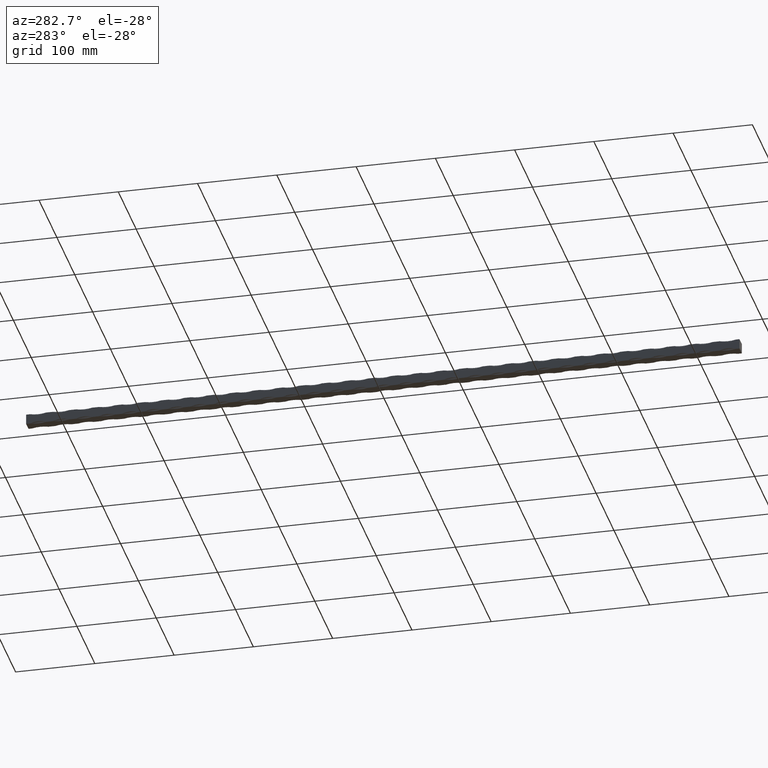
[diagram: clean part render]
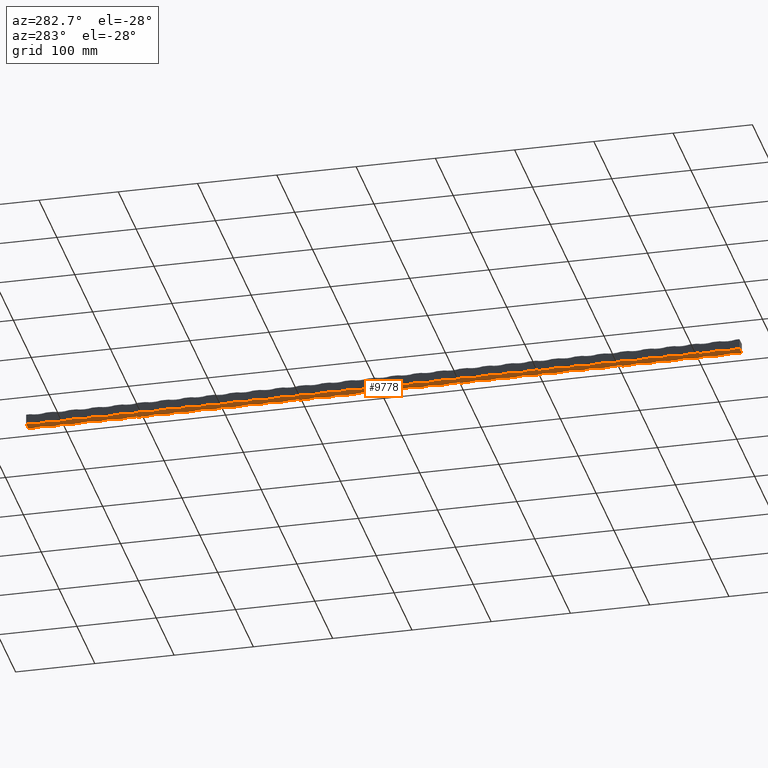
[diagram: same view with one face highlighted and labeled with its STEP entity id]
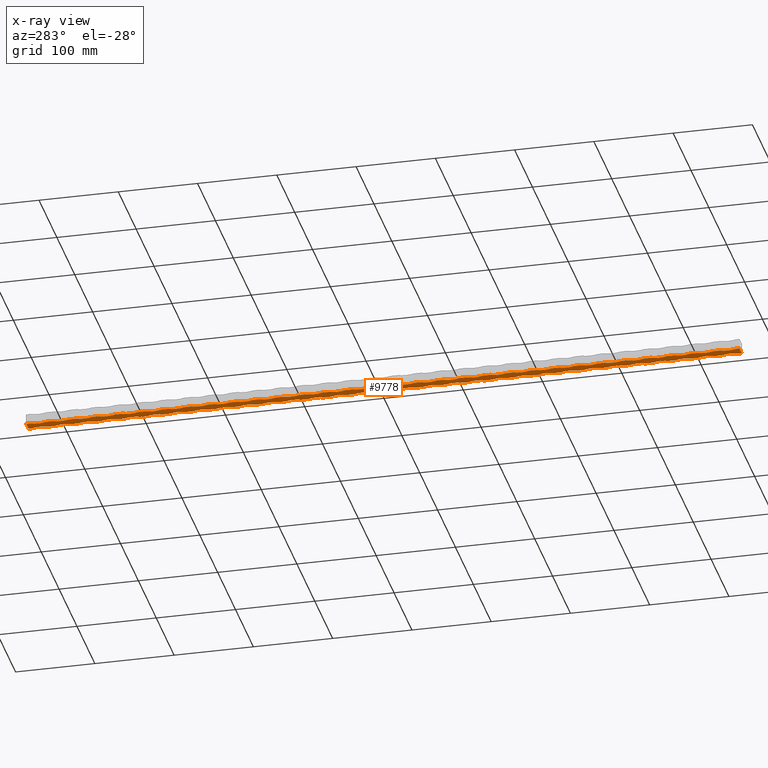
[diagram: x-ray of the same camera — body ghosted, the highlighted face saturated]
A machine part, auxiliary view. The second image highlights one B-rep face of the part: STEP entity #9778.
The next image is the same camera in x-ray: the body ghosted, the highlighted face saturated — about 0% of this face is hidden behind the body in this view.
In plain terms, the highlighted planar face has unit normal (0, 0, 1).
Its self-contained STEP definition (entity closure, byte-faithful):
#16 = VECTOR ( 'NONE', #10760, 1000.000000000000000 ) ;
#59 = CIRCLE ( 'NONE', #3453, 26.00000000000000400 ) ;
#71 = LINE ( 'NONE', #5425, #3220 ) ;
#84 = CARTESIAN_POINT ( 'NONE',  ( -6.500000000000000900, 450.0000000000000000, -6.499999999999999100 ) ) ;
#88 = EDGE_CURVE ( 'NONE', #8012, #11672, #4038, .T. ) ;
#95 = CARTESIAN_POINT ( 'NONE',  ( -6.499999999999970700, -68.00000000000000000, -6.499999999999999100 ) ) ;
#127 = CIRCLE ( 'NONE', #4352, 26.00000000000000400 ) ;
#212 = CIRCLE ( 'NONE', #8542, 26.00000000000000000 ) ;
#221 = CARTESIAN_POINT ( 'NONE',  ( 6.499999999999997300, 450.0000000000000000, -6.499999999999999100 ) ) ;
#251 = VERTEX_POINT ( 'NONE', #4743 ) ;
#254 = DIRECTION ( 'NONE',  ( 0.0000000000000000000, 0.0000000000000000000, 1.000000000000000000 ) ) ;
#262 = CARTESIAN_POINT ( 'NONE',  ( 30.50000000000000000, -377.0000000000000000, -6.500000000000000900 ) ) ;
#277 = CIRCLE ( 'NONE', #7233, 26.00000000000000700 ) ;
#305 = CIRCLE ( 'NONE', #2299, 26.00000000000000400 ) ;
#308 = CARTESIAN_POINT ( 'NONE',  ( -6.499999999999977800, 97.00000000000000000, -6.500000000000000900 ) ) ;
#314 = LINE ( 'NONE', #901, #2795 ) ;
#327 = DIRECTION ( 'NONE',  ( 0.0000000000000000000, 0.0000000000000000000, 1.000000000000000000 ) ) ;
#331 = VERTEX_POINT ( 'NONE', #6115 ) ;
#335 = CARTESIAN_POINT ( 'NONE',  ( -6.499999999999988500, 222.0000000000000000, -6.499999999999999100 ) ) ;
#346 = EDGE_CURVE ( 'NONE', #9945, #13643, #12913, .T. ) ;
#348 = CARTESIAN_POINT ( 'NONE',  ( -6.499999999999958300, -271.0000000000000000, -6.499999999999999100 ) ) ;
#376 = CARTESIAN_POINT ( 'NONE',  ( 30.49999999999995400, 348.0000000000000600, -6.500000000000000900 ) ) ;
#393 = AXIS2_PLACEMENT_3D ( 'NONE', #1640, #14185, #14232 ) ;
#401 = EDGE_CURVE ( 'NONE', #8512, #1253, #6527, .T. ) ;
#417 = DIRECTION ( 'NONE',  ( 1.000000000000000000, 0.0000000000000000000, 0.0000000000000000000 ) ) ;
#431 = DIRECTION ( 'NONE',  ( -0.0000000000000000000, -1.000000000000000000, -0.0000000000000000000 ) ) ;
#439 = LINE ( 'NONE', #607, #11266 ) ;
#460 = ORIENTED_EDGE ( 'NONE', *, *, #10291, .F. ) ;
#469 = VECTOR ( 'NONE', #6088, 1000.000000000000000 ) ;
#472 = EDGE_CURVE ( 'NONE', #13186, #13643, #12373, .T. ) ;
#488 = CARTESIAN_POINT ( 'NONE',  ( 30.49999999999998200, -87.00000000000001400, -6.500000000000000900 ) ) ;
#510 = CARTESIAN_POINT ( 'NONE',  ( 6.499999999999997300, 450.0000000000000000, -6.499999999999999100 ) ) ;
#521 = DIRECTION ( 'NONE',  ( -0.0000000000000000000, -1.000000000000000000, -0.0000000000000000000 ) ) ;
#524 = CARTESIAN_POINT ( 'NONE',  ( -6.499999999999974200, 39.00000000000000000, -6.500000000000000900 ) ) ;
#526 = DIRECTION ( 'NONE',  ( 0.0000000000000000000, 0.0000000000000000000, 1.000000000000000000 ) ) ;
#538 = DIRECTION ( 'NONE',  ( -0.0000000000000000000, -1.000000000000000000, -0.0000000000000000000 ) ) ;
#555 = ORIENTED_EDGE ( 'NONE', *, *, #7346, .F. ) ;
#565 = VERTEX_POINT ( 'NONE', #6845 ) ;
#568 = DIRECTION ( 'NONE',  ( 0.0000000000000000000, 0.0000000000000000000, 1.000000000000000000 ) ) ;
#607 = CARTESIAN_POINT ( 'NONE',  ( -6.500000000000000900, 450.0000000000000000, -6.499999999999999100 ) ) ;
#613 = VERTEX_POINT ( 'NONE', #2513 ) ;
#614 = LINE ( 'NONE', #12485, #2731 ) ;
#616 = DIRECTION ( 'NONE',  ( 0.0000000000000000000, 0.0000000000000000000, 1.000000000000000000 ) ) ;
#624 = CARTESIAN_POINT ( 'NONE',  ( -30.49999999999999300, 319.0000000000000000, -6.500000000000000900 ) ) ;
#634 = EDGE_CURVE ( 'NONE', #14258, #11557, #3295, .T. ) ;
#655 = VERTEX_POINT ( 'NONE', #1440 ) ;
#666 = CARTESIAN_POINT ( 'NONE',  ( 6.499999999999997300, 450.0000000000000000, -6.499999999999999100 ) ) ;
#671 = ORIENTED_EDGE ( 'NONE', *, *, #7868, .T. ) ;
#689 = ORIENTED_EDGE ( 'NONE', *, *, #4136, .T. ) ;
#692 = VECTOR ( 'NONE', #1552, 1000.000000000000000 ) ;
#701 = ORIENTED_EDGE ( 'NONE', *, *, #5484, .T. ) ;
#708 = LINE ( 'NONE', #221, #9064 ) ;
#722 = LINE ( 'NONE', #2801, #16 ) ;
#729 = EDGE_CURVE ( 'NONE', #2996, #7950, #2414, .T. ) ;
#748 = VERTEX_POINT ( 'NONE', #6615 ) ;
#758 = AXIS2_PLACEMENT_3D ( 'NONE', #7508, #9729, #1910 ) ;
#784 = EDGE_CURVE ( 'NONE', #11901, #10136, #9201, .T. ) ;
#799 = AXIS2_PLACEMENT_3D ( 'NONE', #7152, #1464, #13943 ) ;
#822 = CIRCLE ( 'NONE', #3773, 26.00000000000000400 ) ;
#843 = CARTESIAN_POINT ( 'NONE',  ( -6.499999999999952900, -358.0000000000000600, -6.499999999999999100 ) ) ;
#851 = VERTEX_POINT ( 'NONE', #14302 ) ;
#882 = CARTESIAN_POINT ( 'NONE',  ( 6.499999999999997300, 450.0000000000000000, -6.499999999999999100 ) ) ;
#890 = CARTESIAN_POINT ( 'NONE',  ( -30.49999999999998900, 261.0000000000000000, -6.500000000000000900 ) ) ;
#901 = CARTESIAN_POINT ( 'NONE',  ( -6.500000000000000900, 450.0000000000000000, -6.499999999999999100 ) ) ;
#925 = CARTESIAN_POINT ( 'NONE',  ( -30.49999999999996800, -87.00000000000001400, -6.500000000000000900 ) ) ;
#932 = CARTESIAN_POINT ( 'NONE',  ( 6.499999999999997300, 450.0000000000000000, -6.499999999999999100 ) ) ;
#972 = CARTESIAN_POINT ( 'NONE',  ( 30.49999999999997200, 58.00000000000000000, -6.500000000000000900 ) ) ;
#977 = LINE ( 'NONE', #8962, #1145 ) ;
#982 = ORIENTED_EDGE ( 'NONE', *, *, #4622, .F. ) ;
#985 = CARTESIAN_POINT ( 'NONE',  ( -30.49999999999996100, -232.0000000000000000, -6.500000000000000900 ) ) ;
#992 = VECTOR ( 'NONE', #8601, 1000.000000000000000 ) ;
#1000 = VERTEX_POINT ( 'NONE', #9427 ) ;
#1001 = DIRECTION ( 'NONE',  ( -0.0000000000000000000, -1.000000000000000000, -0.0000000000000000000 ) ) ;
#1008 = DIRECTION ( 'NONE',  ( 1.000000000000000000, 0.0000000000000000000, 0.0000000000000000000 ) ) ;
#1014 = DIRECTION ( 'NONE',  ( 1.000000000000000000, 0.0000000000000000000, 0.0000000000000000000 ) ) ;
#1017 = CARTESIAN_POINT ( 'NONE',  ( -30.49999999999994700, -435.0000000000000000, -6.500000000000000900 ) ) ;
#1023 = CARTESIAN_POINT ( 'NONE',  ( -6.500000000000000900, 450.0000000000000000, -6.499999999999999100 ) ) ;
#1028 = ORIENTED_EDGE ( 'NONE', *, *, #10763, .T. ) ;
#1050 = CARTESIAN_POINT ( 'NONE',  ( 6.499999999999995600, -213.0000000000000600, -6.500000000000000900 ) ) ;
#1069 = EDGE_CURVE ( 'NONE', #251, #5073, #13602, .T. ) ;
#1079 = CARTESIAN_POINT ( 'NONE',  ( 30.49999999999996100, 261.0000000000000000, -6.500000000000000900 ) ) ;
#1087 = CARTESIAN_POINT ( 'NONE',  ( -6.500000000000000900, 450.0000000000000000, -6.499999999999999100 ) ) ;
#1095 = EDGE_CURVE ( 'NONE', #10136, #6661, #13959, .T. ) ;
#1096 = CARTESIAN_POINT ( 'NONE',  ( -30.49999999999997500, 29.00000000000000000, -6.500000000000000900 ) ) ;
#1103 = VERTEX_POINT ( 'NONE', #2758 ) ;
#1115 = CIRCLE ( 'NONE', #13699, 26.00000000000000400 ) ;
#1128 = VERTEX_POINT ( 'NONE', #6079 ) ;
#1144 = VERTEX_POINT ( 'NONE', #8578 ) ;
#1145 = VECTOR ( 'NONE', #2128, 1000.000000000000000 ) ;
#1157 = AXIS2_PLACEMENT_3D ( 'NONE', #10494, #9204, #8097 ) ;
#1188 = DIRECTION ( 'NONE',  ( 0.0000000000000000000, 0.0000000000000000000, 1.000000000000000000 ) ) ;
#1246 = VERTEX_POINT ( 'NONE', #4388 ) ;
#1253 = VERTEX_POINT ( 'NONE', #13460 ) ;
#1258 = ORIENTED_EDGE ( 'NONE', *, *, #8721, .F. ) ;
#1330 = LINE ( 'NONE', #11291, #11976 ) ;
#1339 = DIRECTION ( 'NONE',  ( -0.0000000000000000000, -1.000000000000000000, -0.0000000000000000000 ) ) ;
#1354 = DIRECTION ( 'NONE',  ( -0.0000000000000000000, -1.000000000000000000, -0.0000000000000000000 ) ) ;
#1378 = CARTESIAN_POINT ( 'NONE',  ( 6.499999999999997300, 450.0000000000000000, -6.499999999999999100 ) ) ;
#1387 = CARTESIAN_POINT ( 'NONE',  ( -6.500000000000000900, 450.0000000000000000, -6.499999999999999100 ) ) ;
#1408 = CARTESIAN_POINT ( 'NONE',  ( 30.49999999999999600, -348.0000000000000600, -6.500000000000000900 ) ) ;
#1415 = LINE ( 'NONE', #10737, #6377 ) ;
#1420 = EDGE_CURVE ( 'NONE', #5332, #251, #8655, .T. ) ;
#1440 = CARTESIAN_POINT ( 'NONE',  ( 6.499999999999976000, -48.00000000000000000, -6.500000000000000900 ) ) ;
#1454 = DIRECTION ( 'NONE',  ( 0.0000000000000000000, 0.0000000000000000000, 1.000000000000000000 ) ) ;
#1464 = DIRECTION ( 'NONE',  ( 0.0000000000000000000, 0.0000000000000000000, 1.000000000000000000 ) ) ;
#1474 = CIRCLE ( 'NONE', #4649, 26.00000000000000400 ) ;
#1476 = ORIENTED_EDGE ( 'NONE', *, *, #5222, .F. ) ;
#1482 = LINE ( 'NONE', #2840, #5043 ) ;
#1501 = EDGE_CURVE ( 'NONE', #9527, #6297, #14640, .T. ) ;
#1524 = CIRCLE ( 'NONE', #10392, 26.00000000000000400 ) ;
#1536 = VECTOR ( 'NONE', #3865, 1000.000000000000000 ) ;
#1552 = DIRECTION ( 'NONE',  ( -0.0000000000000000000, -1.000000000000000000, -0.0000000000000000000 ) ) ;
#1568 = VERTEX_POINT ( 'NONE', #1984 ) ;
#1580 = DIRECTION ( 'NONE',  ( -0.0000000000000000000, -1.000000000000000000, -0.0000000000000000000 ) ) ;
#1603 = CARTESIAN_POINT ( 'NONE',  ( -6.500000000000000900, 450.0000000000000000, -6.499999999999999100 ) ) ;
#1609 = CARTESIAN_POINT ( 'NONE',  ( -6.500000000000000900, 450.0000000000000000, -6.499999999999999100 ) ) ;
#1620 = EDGE_CURVE ( 'NONE', #10688, #12359, #1878, .T. ) ;
#1623 = AXIS2_PLACEMENT_3D ( 'NONE', #890, #12100, #1926 ) ;
#1640 = CARTESIAN_POINT ( 'NONE',  ( -30.49999999999995400, -319.0000000000000000, -6.500000000000000900 ) ) ;
#1642 = ORIENTED_EDGE ( 'NONE', *, *, #9521, .T. ) ;
#1666 = EDGE_CURVE ( 'NONE', #6515, #14095, #4191, .T. ) ;
#1675 = CARTESIAN_POINT ( 'NONE',  ( 6.499999999999977800, -77.00000000000001400, -6.500000000000000900 ) ) ;
#1696 = LINE ( 'NONE', #3765, #6847 ) ;
#1701 = DIRECTION ( 'NONE',  ( 1.000000000000000000, 0.0000000000000000000, 0.0000000000000000000 ) ) ;
#1718 = ORIENTED_EDGE ( 'NONE', *, *, #2331, .F. ) ;
#1742 = CARTESIAN_POINT ( 'NONE',  ( -6.500000000000000900, 450.0000000000000000, -6.499999999999999100 ) ) ;
#1781 = CARTESIAN_POINT ( 'NONE',  ( -6.500000000000000900, 450.0000000000000000, -6.499999999999999100 ) ) ;
#1787 = AXIS2_PLACEMENT_3D ( 'NONE', #10860, #4180, #7412 ) ;
#1796 = DIRECTION ( 'NONE',  ( 0.0000000000000000000, 0.0000000000000000000, 1.000000000000000000 ) ) ;
#1813 = ORIENTED_EDGE ( 'NONE', *, *, #4153, .T. ) ;
#1834 = VERTEX_POINT ( 'NONE', #4203 ) ;
#1836 = DIRECTION ( 'NONE',  ( -0.0000000000000000000, -1.000000000000000000, -0.0000000000000000000 ) ) ;
#1838 = CIRCLE ( 'NONE', #7012, 26.00000000000000400 ) ;
#1847 = EDGE_CURVE ( 'NONE', #3514, #12083, #5616, .T. ) ;
#1863 = LINE ( 'NONE', #84, #8095 ) ;
#1872 = DIRECTION ( 'NONE',  ( 0.0000000000000000000, 0.0000000000000000000, 1.000000000000000000 ) ) ;
#1878 = CIRCLE ( 'NONE', #9116, 26.00000000000000400 ) ;
#1881 = CARTESIAN_POINT ( 'NONE',  ( 30.49999999999998600, -145.0000000000000300, -6.500000000000000900 ) ) ;
#1892 = EDGE_CURVE ( 'NONE', #3557, #331, #2214, .T. ) ;
#1901 = VERTEX_POINT ( 'NONE', #11408 ) ;
#1909 = CARTESIAN_POINT ( 'NONE',  ( -6.499999999999999100, 396.0000000000000000, -6.499999999999999100 ) ) ;
#1910 = DIRECTION ( 'NONE',  ( 1.000000000000000000, 0.0000000000000000000, 0.0000000000000000000 ) ) ;
#1913 = ORIENTED_EDGE ( 'NONE', *, *, #5749, .F. ) ;
#1918 = DIRECTION ( 'NONE',  ( -0.0000000000000000000, -1.000000000000000000, -0.0000000000000000000 ) ) ;
#1920 = DIRECTION ( 'NONE',  ( 1.000000000000000000, 0.0000000000000000000, 0.0000000000000000000 ) ) ;
#1924 = ORIENTED_EDGE ( 'NONE', *, *, #1847, .T. ) ;
#1926 = DIRECTION ( 'NONE',  ( 1.000000000000000000, 0.0000000000000000000, 0.0000000000000000000 ) ) ;
#1927 = ORIENTED_EDGE ( 'NONE', *, *, #1892, .T. ) ;
#1933 = DIRECTION ( 'NONE',  ( 1.000000000000000000, 0.0000000000000000000, 0.0000000000000000000 ) ) ;
#1952 = EDGE_CURVE ( 'NONE', #3743, #2942, #3634, .T. ) ;
#1960 = CARTESIAN_POINT ( 'NONE',  ( -6.499999999999995600, 338.0000000000000000, -6.499999999999999100 ) ) ;
#1963 = VERTEX_POINT ( 'NONE', #5689 ) ;
#1966 = ORIENTED_EDGE ( 'NONE', *, *, #7254, .T. ) ;
#1973 = CIRCLE ( 'NONE', #13548, 26.00000000000000400 ) ;
#1984 = CARTESIAN_POINT ( 'NONE',  ( 6.499999999999952000, 358.0000000000000600, -6.500000000000000900 ) ) ;
#1985 = DIRECTION ( 'NONE',  ( -0.0000000000000000000, -1.000000000000000000, -0.0000000000000000000 ) ) ;
#2004 = CARTESIAN_POINT ( 'NONE',  ( -6.499999999999960000, -193.0000000000000000, -6.500000000000000900 ) ) ;
#2022 = CARTESIAN_POINT ( 'NONE',  ( 6.499999999999999100, 18.99999999999992500, -6.500000000000000900 ) ) ;
#2031 = CARTESIAN_POINT ( 'NONE',  ( 6.499999999999999100, 279.9999999999999400, -6.500000000000000900 ) ) ;
#2038 = EDGE_CURVE ( 'NONE', #10202, #12957, #7380, .T. ) ;
#2046 = VECTOR ( 'NONE', #431, 1000.000000000000000 ) ;
#2059 = CIRCLE ( 'NONE', #6876, 26.00000000000000400 ) ;
#2065 = ORIENTED_EDGE ( 'NONE', *, *, #9448, .T. ) ;
#2086 = ORIENTED_EDGE ( 'NONE', *, *, #4068, .T. ) ;
#2092 = DIRECTION ( 'NONE',  ( 0.0000000000000000000, 0.0000000000000000000, 1.000000000000000000 ) ) ;
#2097 = CARTESIAN_POINT ( 'NONE',  ( 6.499999999999997300, 450.0000000000000000, -6.499999999999999100 ) ) ;
#2111 = CARTESIAN_POINT ( 'NONE',  ( -6.500000000000000900, 450.0000000000000000, -6.499999999999999100 ) ) ;
#2128 = DIRECTION ( 'NONE',  ( -0.0000000000000000000, -1.000000000000000000, -0.0000000000000000000 ) ) ;
#2154 = VECTOR ( 'NONE', #11380, 1000.000000000000000 ) ;
#2187 = VECTOR ( 'NONE', #6551, 1000.000000000000000 ) ;
#2190 = DIRECTION ( 'NONE',  ( -0.0000000000000000000, -1.000000000000000000, -0.0000000000000000000 ) ) ;
#2213 = LINE ( 'NONE', #3142, #7024 ) ;
#2214 = CIRCLE ( 'NONE', #11668, 26.00000000000000400 ) ;
#2233 = ORIENTED_EDGE ( 'NONE', *, *, #784, .T. ) ;
#2245 = CARTESIAN_POINT ( 'NONE',  ( 6.499999999999997300, 450.0000000000000000, -6.499999999999999100 ) ) ;
#2247 = ORIENTED_EDGE ( 'NONE', *, *, #12706, .T. ) ;
#2250 = VERTEX_POINT ( 'NONE', #3455 ) ;
#2262 = VERTEX_POINT ( 'NONE', #5670 ) ;
#2271 = LINE ( 'NONE', #9638, #2640 ) ;
#2282 = EDGE_CURVE ( 'NONE', #3557, #9273, #7902, .T. ) ;
#2286 = AXIS2_PLACEMENT_3D ( 'NONE', #12732, #254, #5896 ) ;
#2294 = ORIENTED_EDGE ( 'NONE', *, *, #10137, .F. ) ;
#2299 = AXIS2_PLACEMENT_3D ( 'NONE', #11689, #7070, #2490 ) ;
#2310 = VERTEX_POINT ( 'NONE', #5817 ) ;
#2319 = CARTESIAN_POINT ( 'NONE',  ( -6.499999999999993800, 309.0000000000000000, -6.499999999999999100 ) ) ;
#2331 = EDGE_CURVE ( 'NONE', #3483, #8776, #1863, .T. ) ;
#2346 = AXIS2_PLACEMENT_3D ( 'NONE', #2877, #1796, #7687 ) ;
#2351 = ORIENTED_EDGE ( 'NONE', *, *, #346, .F. ) ;
#2356 = EDGE_CURVE ( 'NONE', #5636, #6690, #12855, .T. ) ;
#2360 = DIRECTION ( 'NONE',  ( 1.000000000000000000, 0.0000000000000000000, 0.0000000000000000000 ) ) ;
#2361 = CARTESIAN_POINT ( 'NONE',  ( 6.499999999999997300, 450.0000000000000000, -6.499999999999999100 ) ) ;
#2401 = ORIENTED_EDGE ( 'NONE', *, *, #3854, .T. ) ;
#2405 = LINE ( 'NONE', #7667, #11843 ) ;
#2414 = CIRCLE ( 'NONE', #11758, 26.00000000000000400 ) ;
#2457 = VERTEX_POINT ( 'NONE', #11918 ) ;
#2473 = DIRECTION ( 'NONE',  ( 0.0000000000000000000, 0.0000000000000000000, 1.000000000000000000 ) ) ;
#2475 = CARTESIAN_POINT ( 'NONE',  ( -30.49999999999997900, 58.00000000000000000, -6.500000000000000900 ) ) ;
#2485 = EDGE_CURVE ( 'NONE', #8985, #8438, #4176, .T. ) ;
#2490 = DIRECTION ( 'NONE',  ( 1.000000000000000000, 0.0000000000000000000, 0.0000000000000000000 ) ) ;
#2499 = ORIENTED_EDGE ( 'NONE', *, *, #9407, .T. ) ;
#2513 = CARTESIAN_POINT ( 'NONE',  ( 6.499999999999987600, -222.0000000000000000, -6.500000000000000900 ) ) ;
#2514 = CARTESIAN_POINT ( 'NONE',  ( -6.499999999999983100, 135.0000000000000000, -6.499999999999999100 ) ) ;
#2523 = DIRECTION ( 'NONE',  ( -0.0000000000000000000, -1.000000000000000000, -0.0000000000000000000 ) ) ;
#2532 = CARTESIAN_POINT ( 'NONE',  ( -6.500000000000000900, 450.0000000000000000, -6.499999999999999100 ) ) ;
#2597 = ORIENTED_EDGE ( 'NONE', *, *, #10495, .F. ) ;
#2610 = ORIENTED_EDGE ( 'NONE', *, *, #10859, .F. ) ;
#2616 = CARTESIAN_POINT ( 'NONE',  ( 6.499999999999999100, -39.00000000000005700, -6.500000000000000900 ) ) ;
#2638 = DIRECTION ( 'NONE',  ( 0.0000000000000000000, 0.0000000000000000000, 1.000000000000000000 ) ) ;
#2640 = VECTOR ( 'NONE', #5062, 1000.000000000000000 ) ;
#2675 = CARTESIAN_POINT ( 'NONE',  ( -6.500000000000000900, 450.0000000000000000, -6.499999999999999100 ) ) ;
#2713 = EDGE_CURVE ( 'NONE', #851, #4284, #7714, .T. ) ;
#2718 = CARTESIAN_POINT ( 'NONE',  ( -6.499999999999979600, 77.00000000000000000, -6.499999999999999100 ) ) ;
#2728 = CARTESIAN_POINT ( 'NONE',  ( -6.499999999999974200, -10.00000000000000700, -6.499999999999999100 ) ) ;
#2731 = VECTOR ( 'NONE', #8024, 1000.000000000000000 ) ;
#2746 = DIRECTION ( 'NONE',  ( 1.000000000000000000, 0.0000000000000000000, 0.0000000000000000000 ) ) ;
#2758 = CARTESIAN_POINT ( 'NONE',  ( 6.499999999999948500, 416.0000000000000600, -6.500000000000000900 ) ) ;
#2762 = EDGE_CURVE ( 'NONE', #10319, #2999, #6123, .T. ) ;
#2771 = ORIENTED_EDGE ( 'NONE', *, *, #1620, .T. ) ;
#2795 = VECTOR ( 'NONE', #13257, 1000.000000000000000 ) ;
#2801 = CARTESIAN_POINT ( 'NONE',  ( -6.500000000000000900, 450.0000000000000000, -6.499999999999999100 ) ) ;
#2818 = AXIS2_PLACEMENT_3D ( 'NONE', #488, #6130, #10718 ) ;
#2831 = DIRECTION ( 'NONE',  ( 1.000000000000000000, 0.0000000000000000000, 0.0000000000000000000 ) ) ;
#2840 = CARTESIAN_POINT ( 'NONE',  ( 6.499999999999997300, 450.0000000000000000, -6.499999999999999100 ) ) ;
#2862 = ORIENTED_EDGE ( 'NONE', *, *, #8160, .T. ) ;
#2865 = CARTESIAN_POINT ( 'NONE',  ( 6.499999999999953800, 329.0000000000000000, -6.500000000000000900 ) ) ;
#2877 = CARTESIAN_POINT ( 'NONE',  ( 30.49999999999995700, 319.0000000000000000, -6.500000000000000900 ) ) ;
#2880 = VERTEX_POINT ( 'NONE', #9218 ) ;
#2919 = CARTESIAN_POINT ( 'NONE',  ( 6.499999999999999100, -396.0000000000000000, -6.500000000000000900 ) ) ;
#2942 = VERTEX_POINT ( 'NONE', #10406 ) ;
#2950 = DIRECTION ( 'NONE',  ( 0.0000000000000000000, 0.0000000000000000000, 1.000000000000000000 ) ) ;
#2952 = CARTESIAN_POINT ( 'NONE',  ( -6.500000000000000900, 450.0000000000000000, -6.499999999999999100 ) ) ;
#2959 = DIRECTION ( 'NONE',  ( 1.000000000000000000, 0.0000000000000000000, 0.0000000000000000000 ) ) ;
#2976 = CARTESIAN_POINT ( 'NONE',  ( -6.500000000000000900, 450.0000000000000000, -6.499999999999999100 ) ) ;
#2996 = VERTEX_POINT ( 'NONE', #11591 ) ;
#2999 = VERTEX_POINT ( 'NONE', #4885 ) ;
#3020 = CIRCLE ( 'NONE', #6523, 26.00000000000000400 ) ;
#3028 = VERTEX_POINT ( 'NONE', #6257 ) ;
#3044 = VERTEX_POINT ( 'NONE', #7410 ) ;
#3051 = CARTESIAN_POINT ( 'NONE',  ( -6.499999999999997300, 367.0000000000000000, -6.499999999999999100 ) ) ;
#3120 = CARTESIAN_POINT ( 'NONE',  ( 30.49999999999997900, -29.00000000000000000, -6.500000000000000900 ) ) ;
#3127 = VECTOR ( 'NONE', #521, 1000.000000000000000 ) ;
#3139 = PLANE ( 'NONE',  #12000 ) ;
#3142 = CARTESIAN_POINT ( 'NONE',  ( 6.499999999999997300, 450.0000000000000000, -6.499999999999999100 ) ) ;
#3154 = EDGE_CURVE ( 'NONE', #748, #331, #11805, .T. ) ;
#3159 = VECTOR ( 'NONE', #3700, 1000.000000000000000 ) ;
#3171 = DIRECTION ( 'NONE',  ( 1.000000000000000000, 0.0000000000000000000, 0.0000000000000000000 ) ) ;
#3181 = CARTESIAN_POINT ( 'NONE',  ( -30.49999999999997900, 87.00000000000001400, -6.500000000000000900 ) ) ;
#3202 = AXIS2_PLACEMENT_3D ( 'NONE', #6164, #7142, #12899 ) ;
#3209 = DIRECTION ( 'NONE',  ( -0.0000000000000000000, -1.000000000000000000, -0.0000000000000000000 ) ) ;
#3217 = DIRECTION ( 'NONE',  ( 0.0000000000000000000, 0.0000000000000000000, 1.000000000000000000 ) ) ;
#3220 = VECTOR ( 'NONE', #1001, 1000.000000000000000 ) ;
#3242 = AXIS2_PLACEMENT_3D ( 'NONE', #10189, #7852, #8504 ) ;
#3268 = CARTESIAN_POINT ( 'NONE',  ( 6.499999999999984000, -164.0000000000000000, -6.500000000000000900 ) ) ;
#3270 = CARTESIAN_POINT ( 'NONE',  ( 6.499999999999995600, 221.9999999999999100, -6.500000000000000900 ) ) ;
#3275 = EDGE_CURVE ( 'NONE', #4509, #7585, #12675, .T. ) ;
#3295 = CIRCLE ( 'NONE', #14482, 26.00000000000000000 ) ;
#3304 = VERTEX_POINT ( 'NONE', #2031 ) ;
#3314 = LINE ( 'NONE', #666, #13979 ) ;
#3326 = LINE ( 'NONE', #1781, #9780 ) ;
#3347 = ORIENTED_EDGE ( 'NONE', *, *, #6065, .T. ) ;
#3348 = CARTESIAN_POINT ( 'NONE',  ( 30.49999999999997500, 29.00000000000000000, -6.500000000000000900 ) ) ;
#3349 = AXIS2_PLACEMENT_3D ( 'NONE', #1096, #10181, #1008 ) ;
#3371 = AXIS2_PLACEMENT_3D ( 'NONE', #262, #8185, #7092 ) ;
#3382 = CARTESIAN_POINT ( 'NONE',  ( -6.499999999999948500, -416.0000000000000600, -6.499999999999999100 ) ) ;
#3408 = ORIENTED_EDGE ( 'NONE', *, *, #13589, .T. ) ;
#3412 = DIRECTION ( 'NONE',  ( -0.0000000000000000000, -1.000000000000000000, -0.0000000000000000000 ) ) ;
#3421 = ORIENTED_EDGE ( 'NONE', *, *, #3154, .F. ) ;
#3428 = LINE ( 'NONE', #14150, #12696 ) ;
#3447 = CARTESIAN_POINT ( 'NONE',  ( -6.500000000000000900, 450.0000000000000000, -6.499999999999999100 ) ) ;
#3453 = AXIS2_PLACEMENT_3D ( 'NONE', #14663, #11200, #1014 ) ;
#3455 = CARTESIAN_POINT ( 'NONE',  ( -6.499999999999999100, 445.0000000000000000, -6.500000000000000900 ) ) ;
#3483 = VERTEX_POINT ( 'NONE', #2718 ) ;
#3491 = VERTEX_POINT ( 'NONE', #12744 ) ;
#3514 = VERTEX_POINT ( 'NONE', #5953 ) ;
#3517 = ORIENTED_EDGE ( 'NONE', *, *, #401, .F. ) ;
#3531 = LINE ( 'NONE', #1387, #3159 ) ;
#3535 = CARTESIAN_POINT ( 'NONE',  ( -30.49999999999996800, -116.0000000000000000, -6.500000000000000900 ) ) ;
#3555 = CARTESIAN_POINT ( 'NONE',  ( 6.499999999999995600, -329.0000000000000000, -6.500000000000000900 ) ) ;
#3556 = EDGE_CURVE ( 'NONE', #9575, #6397, #7153, .T. ) ;
#3557 = VERTEX_POINT ( 'NONE', #5114 ) ;
#3566 = DIRECTION ( 'NONE',  ( 1.000000000000000000, 0.0000000000000000000, 0.0000000000000000000 ) ) ;
#3576 = EDGE_CURVE ( 'NONE', #8860, #6690, #8785, .T. ) ;
#3587 = DIRECTION ( 'NONE',  ( 1.000000000000000000, 0.0000000000000000000, 0.0000000000000000000 ) ) ;
#3590 = CARTESIAN_POINT ( 'NONE',  ( 6.499999999999995600, -358.0000000000000600, -6.500000000000000900 ) ) ;
#3617 = VERTEX_POINT ( 'NONE', #5158 ) ;
#3618 = LINE ( 'NONE', #3447, #11116 ) ;
#3619 = DIRECTION ( 'NONE',  ( 0.0000000000000000000, 0.0000000000000000000, 1.000000000000000000 ) ) ;
#3630 = CARTESIAN_POINT ( 'NONE',  ( 6.499999999999997300, 450.0000000000000000, -6.499999999999999100 ) ) ;
#3634 = LINE ( 'NONE', #12376, #13231 ) ;
#3700 = DIRECTION ( 'NONE',  ( -0.0000000000000000000, -1.000000000000000000, -0.0000000000000000000 ) ) ;
#3706 = DIRECTION ( 'NONE',  ( 1.000000000000000000, 0.0000000000000000000, 0.0000000000000000000 ) ) ;
#3708 = VERTEX_POINT ( 'NONE', #6290 ) ;
#3710 = ORIENTED_EDGE ( 'NONE', *, *, #14091, .T. ) ;
#3715 = CARTESIAN_POINT ( 'NONE',  ( -30.49999999999995000, -377.0000000000000000, -6.500000000000000900 ) ) ;
#3716 = DIRECTION ( 'NONE',  ( 0.0000000000000000000, 0.0000000000000000000, 1.000000000000000000 ) ) ;
#3743 = VERTEX_POINT ( 'NONE', #8887 ) ;
#3751 = EDGE_CURVE ( 'NONE', #3483, #4986, #4869, .T. ) ;
#3765 = CARTESIAN_POINT ( 'NONE',  ( 6.499999999999997300, 450.0000000000000000, -6.499999999999999100 ) ) ;
#3773 = AXIS2_PLACEMENT_3D ( 'NONE', #3715, #3619, #5872 ) ;
#3777 = ORIENTED_EDGE ( 'NONE', *, *, #7001, .T. ) ;
#3778 = VECTOR ( 'NONE', #8481, 1000.000000000000000 ) ;
#3794 = EDGE_CURVE ( 'NONE', #4714, #613, #11790, .T. ) ;
#3812 = AXIS2_PLACEMENT_3D ( 'NONE', #7106, #327, #4737 ) ;
#3837 = VERTEX_POINT ( 'NONE', #14541 ) ;
#3854 = EDGE_CURVE ( 'NONE', #9181, #1253, #12834, .T. ) ;
#3862 = CIRCLE ( 'NONE', #6466, 26.00000000000000700 ) ;
#3865 = DIRECTION ( 'NONE',  ( -0.0000000000000000000, -1.000000000000000000, -0.0000000000000000000 ) ) ;
#3866 = CARTESIAN_POINT ( 'NONE',  ( 6.499999999999999100, 47.99999999999992900, -6.500000000000000900 ) ) ;
#3887 = CARTESIAN_POINT ( 'NONE',  ( -6.499999999999949400, -367.0000000000000000, -6.500000000000000900 ) ) ;
#3890 = AXIS2_PLACEMENT_3D ( 'NONE', #1079, #2950, #7769 ) ;
#3902 = DIRECTION ( 'NONE',  ( 0.0000000000000000000, 0.0000000000000000000, 1.000000000000000000 ) ) ;
#3906 = VERTEX_POINT ( 'NONE', #8938 ) ;
#3917 = CARTESIAN_POINT ( 'NONE',  ( -30.49999999999999600, 377.0000000000000000, -6.500000000000000900 ) ) ;
#3923 = LINE ( 'NONE', #8205, #12628 ) ;
#3933 = DIRECTION ( 'NONE',  ( -0.0000000000000000000, -1.000000000000000000, -0.0000000000000000000 ) ) ;
#3947 = VERTEX_POINT ( 'NONE', #3590 ) ;
#3959 = DIRECTION ( 'NONE',  ( -0.0000000000000000000, -1.000000000000000000, -0.0000000000000000000 ) ) ;
#3998 = EDGE_CURVE ( 'NONE', #7568, #3617, #1838, .T. ) ;
#4038 = LINE ( 'NONE', #1023, #7058 ) ;
#4051 = ORIENTED_EDGE ( 'NONE', *, *, #11091, .T. ) ;
#4068 = EDGE_CURVE ( 'NONE', #9717, #2942, #12121, .T. ) ;
#4076 = CIRCLE ( 'NONE', #3202, 26.00000000000000400 ) ;
#4077 = AXIS2_PLACEMENT_3D ( 'NONE', #11064, #3217, #5441 ) ;
#4110 = DIRECTION ( 'NONE',  ( 1.000000000000000000, 0.0000000000000000000, 0.0000000000000000000 ) ) ;
#4136 = EDGE_CURVE ( 'NONE', #1834, #4481, #1474, .T. ) ;
#4153 = EDGE_CURVE ( 'NONE', #9424, #8985, #4857, .T. ) ;
#4158 = VECTOR ( 'NONE', #1985, 1000.000000000000000 ) ;
#4161 = DIRECTION ( 'NONE',  ( 0.0000000000000000000, 0.0000000000000000000, 1.000000000000000000 ) ) ;
#4164 = DIRECTION ( 'NONE',  ( 1.000000000000000000, 0.0000000000000000000, 0.0000000000000000000 ) ) ;
#4176 = LINE ( 'NONE', #510, #992 ) ;
#4180 = DIRECTION ( 'NONE',  ( 0.0000000000000000000, 0.0000000000000000000, 1.000000000000000000 ) ) ;
#4191 = CIRCLE ( 'NONE', #12139, 26.00000000000000400 ) ;
#4196 = CARTESIAN_POINT ( 'NONE',  ( 6.499999999999997300, 450.0000000000000000, -6.499999999999999100 ) ) ;
#4203 = CARTESIAN_POINT ( 'NONE',  ( 6.499999999999968900, 68.00000000000000000, -6.500000000000000900 ) ) ;
#4204 = CIRCLE ( 'NONE', #799, 26.00000000000000400 ) ;
#4229 = EDGE_CURVE ( 'NONE', #8438, #9622, #13384, .T. ) ;
#4256 = VERTEX_POINT ( 'NONE', #12415 ) ;
#4284 = VERTEX_POINT ( 'NONE', #4487 ) ;
#4297 = VERTEX_POINT ( 'NONE', #7752 ) ;
#4300 = DIRECTION ( 'NONE',  ( 0.0000000000000000000, 0.0000000000000000000, 1.000000000000000000 ) ) ;
#4318 = VECTOR ( 'NONE', #7614, 1000.000000000000000 ) ;
#4329 = CIRCLE ( 'NONE', #14254, 26.00000000000000400 ) ;
#4346 = CARTESIAN_POINT ( 'NONE',  ( 6.499999999999962700, 184.0000000000000300, -6.500000000000000900 ) ) ;
#4352 = AXIS2_PLACEMENT_3D ( 'NONE', #6761, #4683, #5772 ) ;
#4388 = CARTESIAN_POINT ( 'NONE',  ( 6.499999999999955600, 300.0000000000000600, -6.500000000000000900 ) ) ;
#4407 = CARTESIAN_POINT ( 'NONE',  ( 6.499999999999999100, 76.99999999999992900, -6.500000000000000900 ) ) ;
#4433 = CARTESIAN_POINT ( 'NONE',  ( 6.499999999999997300, 450.0000000000000000, -6.499999999999999100 ) ) ;
#4458 = ORIENTED_EDGE ( 'NONE', *, *, #1420, .T. ) ;
#4460 = DIRECTION ( 'NONE',  ( 1.000000000000000000, 0.0000000000000000000, 0.0000000000000000000 ) ) ;
#4461 = CARTESIAN_POINT ( 'NONE',  ( -6.499999999999977800, 47.99999999999999300, -6.499999999999999100 ) ) ;
#4473 = DIRECTION ( 'NONE',  ( -0.0000000000000000000, -1.000000000000000000, -0.0000000000000000000 ) ) ;
#4474 = CARTESIAN_POINT ( 'NONE',  ( 30.50000000000000000, -406.0000000000000000, -6.500000000000000900 ) ) ;
#4481 = VERTEX_POINT ( 'NONE', #3866 ) ;
#4487 = CARTESIAN_POINT ( 'NONE',  ( 6.499999999999959100, 242.0000000000000300, -6.500000000000000900 ) ) ;
#4509 = VERTEX_POINT ( 'NONE', #2919 ) ;
#4533 = CARTESIAN_POINT ( 'NONE',  ( 6.499999999999999100, -68.00000000000005700, -6.500000000000000900 ) ) ;
#4570 = VECTOR ( 'NONE', #8406, 1000.000000000000000 ) ;
#4576 = EDGE_CURVE ( 'NONE', #10213, #10958, #5907, .T. ) ;
#4604 = ORIENTED_EDGE ( 'NONE', *, *, #6044, .T. ) ;
#4608 = AXIS2_PLACEMENT_3D ( 'NONE', #4890, #2638, #9372 ) ;
#4617 = DIRECTION ( 'NONE',  ( -0.0000000000000000000, -1.000000000000000000, -0.0000000000000000000 ) ) ;
#4619 = VERTEX_POINT ( 'NONE', #11046 ) ;
#4622 = EDGE_CURVE ( 'NONE', #8102, #8681, #10532, .T. ) ;
#4625 = VERTEX_POINT ( 'NONE', #6701 ) ;
#4644 = ORIENTED_EDGE ( 'NONE', *, *, #13677, .T. ) ;
#4649 = AXIS2_PLACEMENT_3D ( 'NONE', #972, #11111, #10054 ) ;
#4676 = ORIENTED_EDGE ( 'NONE', *, *, #88, .F. ) ;
#4683 = DIRECTION ( 'NONE',  ( 0.0000000000000000000, 0.0000000000000000000, 1.000000000000000000 ) ) ;
#4705 = CIRCLE ( 'NONE', #1157, 26.00000000000000400 ) ;
#4707 = VECTOR ( 'NONE', #1339, 1000.000000000000000 ) ;
#4714 = VERTEX_POINT ( 'NONE', #1050 ) ;
#4737 = DIRECTION ( 'NONE',  ( 1.000000000000000000, 0.0000000000000000000, 0.0000000000000000000 ) ) ;
#4743 = CARTESIAN_POINT ( 'NONE',  ( 6.499999999999999100, 163.9999999999999100, -6.500000000000000900 ) ) ;
#4754 = CARTESIAN_POINT ( 'NONE',  ( 6.499999999999966200, 126.0000000000000000, -6.500000000000000900 ) ) ;
#4756 = VECTOR ( 'NONE', #14490, 1000.000000000000000 ) ;
#4770 = AXIS2_PLACEMENT_3D ( 'NONE', #1881, #568, #2831 ) ;
#4788 = EDGE_CURVE ( 'NONE', #9181, #4297, #6080, .T. ) ;
#4791 = AXIS2_PLACEMENT_3D ( 'NONE', #8761, #8658, #1933 ) ;
#4793 = DIRECTION ( 'NONE',  ( 1.000000000000000000, 0.0000000000000000000, 0.0000000000000000000 ) ) ;
#4795 = VERTEX_POINT ( 'NONE', #3555 ) ;
#4809 = LINE ( 'NONE', #882, #5518 ) ;
#4829 = ORIENTED_EDGE ( 'NONE', *, *, #9497, .F. ) ;
#4857 = CIRCLE ( 'NONE', #4077, 26.00000000000000700 ) ;
#4865 = CARTESIAN_POINT ( 'NONE',  ( 6.499999999999964500, 155.0000000000000300, -6.500000000000000900 ) ) ;
#4867 = LINE ( 'NONE', #9629, #3778 ) ;
#4869 = CIRCLE ( 'NONE', #10548, 26.00000000000000400 ) ;
#4881 = CIRCLE ( 'NONE', #5449, 26.00000000000000400 ) ;
#4885 = CARTESIAN_POINT ( 'NONE',  ( 6.499999999999999100, -387.0000000000000000, -6.500000000000000900 ) ) ;
#4887 = CARTESIAN_POINT ( 'NONE',  ( -6.500000000000000900, 450.0000000000000000, -6.499999999999999100 ) ) ;
#4890 = CARTESIAN_POINT ( 'NONE',  ( -30.49999999999995000, -406.0000000000000000, -6.500000000000000900 ) ) ;
#4896 = CARTESIAN_POINT ( 'NONE',  ( -6.499999999999968000, -77.00000000000001400, -6.500000000000000900 ) ) ;
#4918 = DIRECTION ( 'NONE',  ( 0.0000000000000000000, 0.0000000000000000000, 1.000000000000000000 ) ) ;
#4928 = ORIENTED_EDGE ( 'NONE', *, *, #8044, .T. ) ;
#4960 = ORIENTED_EDGE ( 'NONE', *, *, #11278, .T. ) ;
#4963 = CARTESIAN_POINT ( 'NONE',  ( 6.499999999999999100, 192.9999999999999100, -6.500000000000000900 ) ) ;
#4976 = DIRECTION ( 'NONE',  ( 1.000000000000000000, 0.0000000000000000000, 0.0000000000000000000 ) ) ;
#4986 = VERTEX_POINT ( 'NONE', #308 ) ;
#5035 = CARTESIAN_POINT ( 'NONE',  ( 6.499999999999997300, 450.0000000000000000, -6.499999999999999100 ) ) ;
#5039 = CARTESIAN_POINT ( 'NONE',  ( 6.499999999999991100, -280.0000000000000000, -6.500000000000000900 ) ) ;
#5043 = VECTOR ( 'NONE', #13061, 1000.000000000000000 ) ;
#5054 = CARTESIAN_POINT ( 'NONE',  ( 6.499999999999997300, 450.0000000000000000, -6.499999999999999100 ) ) ;
#5057 = CIRCLE ( 'NONE', #14529, 26.00000000000000400 ) ;
#5062 = DIRECTION ( 'NONE',  ( -0.0000000000000000000, -1.000000000000000000, -0.0000000000000000000 ) ) ;
#5073 = VERTEX_POINT ( 'NONE', #4865 ) ;
#5096 = VECTOR ( 'NONE', #10759, 1000.000000000000000 ) ;
#5112 = CARTESIAN_POINT ( 'NONE',  ( 6.499999999999989300, -251.0000000000000000, -6.500000000000000900 ) ) ;
#5114 = CARTESIAN_POINT ( 'NONE',  ( -6.499999999999963600, -184.0000000000000300, -6.499999999999999100 ) ) ;
#5122 = DIRECTION ( 'NONE',  ( -0.0000000000000000000, -1.000000000000000000, -0.0000000000000000000 ) ) ;
#5149 = LINE ( 'NONE', #7390, #7449 ) ;
#5158 = CARTESIAN_POINT ( 'NONE',  ( -6.499999999999990200, 300.0000000000000600, -6.500000000000000900 ) ) ;
#5162 = VECTOR ( 'NONE', #7523, 1000.000000000000000 ) ;
#5214 = VERTEX_POINT ( 'NONE', #1960 ) ;
#5216 = CARTESIAN_POINT ( 'NONE',  ( 6.499999999999997300, -450.0000000000000000, -6.499999999999999100 ) ) ;
#5222 = EDGE_CURVE ( 'NONE', #7099, #1901, #9433, .T. ) ;
#5223 = DIRECTION ( 'NONE',  ( -0.0000000000000000000, -1.000000000000000000, -0.0000000000000000000 ) ) ;
#5243 = LINE ( 'NONE', #1378, #6666 ) ;
#5254 = CARTESIAN_POINT ( 'NONE',  ( -6.500000000000000900, 450.0000000000000000, -6.499999999999999100 ) ) ;
#5259 = EDGE_CURVE ( 'NONE', #8668, #5332, #4809, .T. ) ;
#5280 = CIRCLE ( 'NONE', #1787, 26.00000000000000400 ) ;
#5290 = DIRECTION ( 'NONE',  ( 1.000000000000000000, 0.0000000000000000000, 0.0000000000000000000 ) ) ;
#5292 = EDGE_CURVE ( 'NONE', #9299, #10213, #8547, .T. ) ;
#5328 = CIRCLE ( 'NONE', #3890, 26.00000000000000700 ) ;
#5332 = VERTEX_POINT ( 'NONE', #4346 ) ;
#5345 = VERTEX_POINT ( 'NONE', #12281 ) ;
#5360 = ORIENTED_EDGE ( 'NONE', *, *, #5389, .T. ) ;
#5389 = EDGE_CURVE ( 'NONE', #613, #9527, #13491, .T. ) ;
#5396 = ORIENTED_EDGE ( 'NONE', *, *, #9742, .T. ) ;
#5420 = CARTESIAN_POINT ( 'NONE',  ( 6.499999999999997300, 450.0000000000000000, -6.499999999999999100 ) ) ;
#5425 = CARTESIAN_POINT ( 'NONE',  ( 6.499999999999997300, 450.0000000000000000, -6.499999999999999100 ) ) ;
#5441 = DIRECTION ( 'NONE',  ( 1.000000000000000000, 0.0000000000000000000, 0.0000000000000000000 ) ) ;
#5449 = AXIS2_PLACEMENT_3D ( 'NONE', #10929, #10887, #2959 ) ;
#5454 = VECTOR ( 'NONE', #11869, 1000.000000000000000 ) ;
#5474 = DIRECTION ( 'NONE',  ( 1.000000000000000000, 0.0000000000000000000, 0.0000000000000000000 ) ) ;
#5479 = ORIENTED_EDGE ( 'NONE', *, *, #3556, .T. ) ;
#5484 = EDGE_CURVE ( 'NONE', #8927, #4795, #14193, .T. ) ;
#5518 = VECTOR ( 'NONE', #11121, 1000.000000000000000 ) ;
#5531 = DIRECTION ( 'NONE',  ( 1.000000000000000000, 0.0000000000000000000, 0.0000000000000000000 ) ) ;
#5575 = DIRECTION ( 'NONE',  ( -0.0000000000000000000, -1.000000000000000000, -0.0000000000000000000 ) ) ;
#5587 = DIRECTION ( 'NONE',  ( 1.000000000000000000, 0.0000000000000000000, 0.0000000000000000000 ) ) ;
#5588 = EDGE_CURVE ( 'NONE', #4284, #7225, #12778, .T. ) ;
#5589 = CARTESIAN_POINT ( 'NONE',  ( -6.499999999999963600, -135.0000000000000000, -6.500000000000000900 ) ) ;
#5594 = AXIS2_PLACEMENT_3D ( 'NONE', #376, #7359, #7256 ) ;
#5616 = LINE ( 'NONE', #13335, #7922 ) ;
#5620 = VERTEX_POINT ( 'NONE', #8520 ) ;
#5636 = VERTEX_POINT ( 'NONE', #14331 ) ;
#5655 = EDGE_CURVE ( 'NONE', #8589, #3837, #722, .T. ) ;
#5670 = CARTESIAN_POINT ( 'NONE',  ( 6.500000000000000900, -425.0000000000000000, -6.500000000000000900 ) ) ;
#5688 = CARTESIAN_POINT ( 'NONE',  ( -6.499999999999944900, -425.0000000000000000, -6.500000000000000900 ) ) ;
#5689 = CARTESIAN_POINT ( 'NONE',  ( 6.499999999999982200, -135.0000000000000000, -6.500000000000000900 ) ) ;
#5720 = CARTESIAN_POINT ( 'NONE',  ( 30.49999999999995000, 406.0000000000000000, -6.500000000000000900 ) ) ;
#5749 = EDGE_CURVE ( 'NONE', #6515, #14187, #3326, .T. ) ;
#5759 = EDGE_CURVE ( 'NONE', #748, #14187, #8705, .T. ) ;
#5761 = ORIENTED_EDGE ( 'NONE', *, *, #6956, .T. ) ;
#5766 = ORIENTED_EDGE ( 'NONE', *, *, #14253, .T. ) ;
#5767 = EDGE_CURVE ( 'NONE', #14542, #12246, #1415, .T. ) ;
#5772 = DIRECTION ( 'NONE',  ( 1.000000000000000000, 0.0000000000000000000, 0.0000000000000000000 ) ) ;
#5779 = ORIENTED_EDGE ( 'NONE', *, *, #6131, .F. ) ;
#5786 = EDGE_CURVE ( 'NONE', #2996, #1128, #5149, .T. ) ;
#5801 = LINE ( 'NONE', #11917, #5454 ) ;
#5807 = DIRECTION ( 'NONE',  ( -0.0000000000000000000, -1.000000000000000000, -0.0000000000000000000 ) ) ;
#5811 = VECTOR ( 'NONE', #5575, 1000.000000000000000 ) ;
#5817 = CARTESIAN_POINT ( 'NONE',  ( 6.499999999999970700, 39.00000000000000000, -6.500000000000000900 ) ) ;
#5865 = ORIENTED_EDGE ( 'NONE', *, *, #8220, .T. ) ;
#5872 = DIRECTION ( 'NONE',  ( 1.000000000000000000, 0.0000000000000000000, 0.0000000000000000000 ) ) ;
#5881 = ORIENTED_EDGE ( 'NONE', *, *, #9826, .T. ) ;
#5896 = DIRECTION ( 'NONE',  ( 1.000000000000000000, 0.0000000000000000000, 0.0000000000000000000 ) ) ;
#5907 = CIRCLE ( 'NONE', #2346, 26.00000000000000400 ) ;
#5953 = CARTESIAN_POINT ( 'NONE',  ( 6.499999999999999100, -155.0000000000000600, -6.500000000000000900 ) ) ;
#5964 = ORIENTED_EDGE ( 'NONE', *, *, #3751, .T. ) ;
#5976 = ORIENTED_EDGE ( 'NONE', *, *, #11377, .T. ) ;
#5978 = VECTOR ( 'NONE', #13009, 1000.000000000000000 ) ;
#6005 = VERTEX_POINT ( 'NONE', #13739 ) ;
#6009 = DIRECTION ( 'NONE',  ( 1.000000000000000000, 0.0000000000000000000, 0.0000000000000000000 ) ) ;
#6027 = ORIENTED_EDGE ( 'NONE', *, *, #3998, .T. ) ;
#6039 = ORIENTED_EDGE ( 'NONE', *, *, #12341, .T. ) ;
#6044 = EDGE_CURVE ( 'NONE', #8512, #9273, #4076, .T. ) ;
#6065 = EDGE_CURVE ( 'NONE', #13396, #8927, #708, .T. ) ;
#6079 = CARTESIAN_POINT ( 'NONE',  ( -6.500000000000000900, -450.0000000000000000, -6.499999999999999100 ) ) ;
#6080 = LINE ( 'NONE', #6794, #2154 ) ;
#6088 = DIRECTION ( 'NONE',  ( -0.0000000000000000000, -1.000000000000000000, -0.0000000000000000000 ) ) ;
#6090 = CARTESIAN_POINT ( 'NONE',  ( -6.499999999999992000, 280.0000000000000000, -6.499999999999999100 ) ) ;
#6094 = LINE ( 'NONE', #2976, #7511 ) ;
#6102 = CARTESIAN_POINT ( 'NONE',  ( -6.499999999999966200, -106.0000000000000100, -6.500000000000000900 ) ) ;
#6115 = CARTESIAN_POINT ( 'NONE',  ( -6.499999999999961800, -164.0000000000000000, -6.500000000000000900 ) ) ;
#6123 = CIRCLE ( 'NONE', #3371, 26.00000000000000400 ) ;
#6130 = DIRECTION ( 'NONE',  ( 0.0000000000000000000, 0.0000000000000000000, 1.000000000000000000 ) ) ;
#6131 = EDGE_CURVE ( 'NONE', #9717, #7312, #3531, .T. ) ;
#6137 = CARTESIAN_POINT ( 'NONE',  ( -6.499999999999976000, 68.00000000000000000, -6.500000000000000900 ) ) ;
#6154 = EDGE_CURVE ( 'NONE', #3947, #10319, #2271, .T. ) ;
#6156 = DIRECTION ( 'NONE',  ( -0.0000000000000000000, -1.000000000000000000, -0.0000000000000000000 ) ) ;
#6164 = CARTESIAN_POINT ( 'NONE',  ( -30.49999999999996100, -203.0000000000000000, -6.500000000000000900 ) ) ;
#6210 = CARTESIAN_POINT ( 'NONE',  ( -6.499999999999954700, -329.0000000000000000, -6.499999999999999100 ) ) ;
#6217 = VERTEX_POINT ( 'NONE', #10576 ) ;
#6241 = DIRECTION ( 'NONE',  ( -0.0000000000000000000, -1.000000000000000000, -0.0000000000000000000 ) ) ;
#6257 = CARTESIAN_POINT ( 'NONE',  ( -6.499999999999990200, 251.0000000000000000, -6.499999999999999100 ) ) ;
#6290 = CARTESIAN_POINT ( 'NONE',  ( -6.499999999999995600, 387.0000000000000000, -6.500000000000000900 ) ) ;
#6296 = CARTESIAN_POINT ( 'NONE',  ( -6.499999999999984900, 164.0000000000000000, -6.499999999999999100 ) ) ;
#6297 = VERTEX_POINT ( 'NONE', #5112 ) ;
#6303 = DIRECTION ( 'NONE',  ( 1.000000000000000000, 0.0000000000000000000, 0.0000000000000000000 ) ) ;
#6312 = ORIENTED_EDGE ( 'NONE', *, *, #6991, .T. ) ;
#6335 = LINE ( 'NONE', #14191, #13947 ) ;
#6341 = CIRCLE ( 'NONE', #5594, 26.00000000000000000 ) ;
#6366 = EDGE_CURVE ( 'NONE', #6217, #851, #5328, .T. ) ;
#6377 = VECTOR ( 'NONE', #1580, 1000.000000000000000 ) ;
#6397 = VERTEX_POINT ( 'NONE', #9783 ) ;
#6427 = DIRECTION ( 'NONE',  ( -0.0000000000000000000, -1.000000000000000000, -0.0000000000000000000 ) ) ;
#6453 = CARTESIAN_POINT ( 'NONE',  ( -30.49999999999995700, -261.0000000000000000, -6.500000000000000900 ) ) ;
#6466 = AXIS2_PLACEMENT_3D ( 'NONE', #8611, #10899, #13161 ) ;
#6470 = DIRECTION ( 'NONE',  ( 0.0000000000000000000, 0.0000000000000000000, 1.000000000000000000 ) ) ;
#6480 = ORIENTED_EDGE ( 'NONE', *, *, #2485, .T. ) ;
#6483 = VERTEX_POINT ( 'NONE', #1909 ) ;
#6490 = DIRECTION ( 'NONE',  ( 1.000000000000000000, 0.0000000000000000000, -0.0000000000000000000 ) ) ;
#6515 = VERTEX_POINT ( 'NONE', #10976 ) ;
#6523 = AXIS2_PLACEMENT_3D ( 'NONE', #11824, #7344, #4976 ) ;
#6527 = LINE ( 'NONE', #11733, #3127 ) ;
#6535 = CIRCLE ( 'NONE', #11652, 26.00000000000000400 ) ;
#6544 = CARTESIAN_POINT ( 'NONE',  ( 6.499999999999997300, 450.0000000000000000, -6.499999999999999100 ) ) ;
#6551 = DIRECTION ( 'NONE',  ( -0.0000000000000000000, -1.000000000000000000, -0.0000000000000000000 ) ) ;
#6563 = VERTEX_POINT ( 'NONE', #3382 ) ;
#6615 = CARTESIAN_POINT ( 'NONE',  ( -6.499999999999965400, -155.0000000000000300, -6.499999999999999100 ) ) ;
#6636 = EDGE_CURVE ( 'NONE', #6906, #14258, #8154, .T. ) ;
#6638 = CARTESIAN_POINT ( 'NONE',  ( 6.499999999999995600, 105.9999999999999300, -6.500000000000000900 ) ) ;
#6661 = VERTEX_POINT ( 'NONE', #7860 ) ;
#6663 = CARTESIAN_POINT ( 'NONE',  ( 6.499999999999999100, 424.9999999999998900, -6.500000000000000900 ) ) ;
#6666 = VECTOR ( 'NONE', #10428, 1000.000000000000000 ) ;
#6669 = ORIENTED_EDGE ( 'NONE', *, *, #7583, .T. ) ;
#6672 = VECTOR ( 'NONE', #1836, 1000.000000000000000 ) ;
#6690 = VERTEX_POINT ( 'NONE', #11610 ) ;
#6700 = ORIENTED_EDGE ( 'NONE', *, *, #2282, .F. ) ;
#6701 = CARTESIAN_POINT ( 'NONE',  ( 6.499999999999968000, 97.00000000000000000, -6.500000000000000900 ) ) ;
#6756 = DIRECTION ( 'NONE',  ( 0.0000000000000000000, 0.0000000000000000000, 1.000000000000000000 ) ) ;
#6760 = DIRECTION ( 'NONE',  ( 1.000000000000000000, 0.0000000000000000000, 0.0000000000000000000 ) ) ;
#6761 = CARTESIAN_POINT ( 'NONE',  ( -30.49999999999997200, -29.00000000000000000, -6.500000000000000900 ) ) ;
#6779 = VERTEX_POINT ( 'NONE', #11898 ) ;
#6794 = CARTESIAN_POINT ( 'NONE',  ( -6.500000000000000900, 450.0000000000000000, -6.499999999999999100 ) ) ;
#6800 = DIRECTION ( 'NONE',  ( 0.0000000000000000000, 0.0000000000000000000, 1.000000000000000000 ) ) ;
#6844 = LINE ( 'NONE', #8433, #469 ) ;
#6845 = CARTESIAN_POINT ( 'NONE',  ( 6.499999999999950300, 387.0000000000000000, -6.500000000000000900 ) ) ;
#6847 = VECTOR ( 'NONE', #2523, 1000.000000000000000 ) ;
#6867 = CARTESIAN_POINT ( 'NONE',  ( 6.499999999999999100, 395.9999999999998900, -6.500000000000000900 ) ) ;
#6876 = AXIS2_PLACEMENT_3D ( 'NONE', #624, #526, #9671 ) ;
#6906 = VERTEX_POINT ( 'NONE', #13937 ) ;
#6930 = ORIENTED_EDGE ( 'NONE', *, *, #9473, .T. ) ;
#6933 = EDGE_CURVE ( 'NONE', #14542, #1000, #12924, .T. ) ;
#6956 = EDGE_CURVE ( 'NONE', #10287, #1834, #9225, .T. ) ;
#6969 = CARTESIAN_POINT ( 'NONE',  ( 6.499999999999999100, -184.0000000000000600, -6.500000000000000900 ) ) ;
#6991 = EDGE_CURVE ( 'NONE', #9622, #655, #3314, .T. ) ;
#6995 = VECTOR ( 'NONE', #7531, 1000.000000000000000 ) ;
#6998 = ORIENTED_EDGE ( 'NONE', *, *, #10410, .T. ) ;
#7001 = EDGE_CURVE ( 'NONE', #2262, #9471, #3862, .T. ) ;
#7007 = LINE ( 'NONE', #14426, #13217 ) ;
#7012 = AXIS2_PLACEMENT_3D ( 'NONE', #12973, #12921, #8372 ) ;
#7024 = VECTOR ( 'NONE', #4617, 1000.000000000000000 ) ;
#7043 = ORIENTED_EDGE ( 'NONE', *, *, #12550, .T. ) ;
#7058 = VECTOR ( 'NONE', #11209, 1000.000000000000000 ) ;
#7070 = DIRECTION ( 'NONE',  ( 0.0000000000000000000, 0.0000000000000000000, 1.000000000000000000 ) ) ;
#7083 = CARTESIAN_POINT ( 'NONE',  ( 6.499999999999992900, -309.0000000000000000, -6.500000000000000900 ) ) ;
#7092 = DIRECTION ( 'NONE',  ( 1.000000000000000000, 0.0000000000000000000, 0.0000000000000000000 ) ) ;
#7098 = ORIENTED_EDGE ( 'NONE', *, *, #10223, .T. ) ;
#7099 = VERTEX_POINT ( 'NONE', #2514 ) ;
#7106 = CARTESIAN_POINT ( 'NONE',  ( -30.49999999999998600, 203.0000000000000000, -6.500000000000000900 ) ) ;
#7109 = VECTOR ( 'NONE', #1918, 1000.000000000000000 ) ;
#7119 = DIRECTION ( 'NONE',  ( 0.0000000000000000000, 0.0000000000000000000, 1.000000000000000000 ) ) ;
#7141 = CARTESIAN_POINT ( 'NONE',  ( 6.499999999999999100, 308.9999999999998900, -6.500000000000000900 ) ) ;
#7142 = DIRECTION ( 'NONE',  ( 0.0000000000000000000, 0.0000000000000000000, 1.000000000000000000 ) ) ;
#7152 = CARTESIAN_POINT ( 'NONE',  ( 30.49999999999999300, -290.0000000000000600, -6.500000000000000900 ) ) ;
#7153 = CIRCLE ( 'NONE', #7484, 26.00000000000000000 ) ;
#7225 = VERTEX_POINT ( 'NONE', #3270 ) ;
#7233 = AXIS2_PLACEMENT_3D ( 'NONE', #3348, #6756, #5474 ) ;
#7238 = DIRECTION ( 'NONE',  ( -0.0000000000000000000, -1.000000000000000000, -0.0000000000000000000 ) ) ;
#7254 = EDGE_CURVE ( 'NONE', #9802, #12246, #6535, .T. ) ;
#7256 = DIRECTION ( 'NONE',  ( 1.000000000000000000, 0.0000000000000000000, 0.0000000000000000000 ) ) ;
#7312 = VERTEX_POINT ( 'NONE', #9725 ) ;
#7344 = DIRECTION ( 'NONE',  ( 0.0000000000000000000, 0.0000000000000000000, 1.000000000000000000 ) ) ;
#7346 = EDGE_CURVE ( 'NONE', #6483, #3708, #6335, .T. ) ;
#7359 = DIRECTION ( 'NONE',  ( 0.0000000000000000000, 0.0000000000000000000, 1.000000000000000000 ) ) ;
#7379 = CARTESIAN_POINT ( 'NONE',  ( -6.499999999999972500, 10.00000000000000000, -6.500000000000000900 ) ) ;
#7380 = LINE ( 'NONE', #1603, #2046 ) ;
#7390 = CARTESIAN_POINT ( 'NONE',  ( -6.500000000000000900, 450.0000000000000000, -6.499999999999999100 ) ) ;
#7410 = CARTESIAN_POINT ( 'NONE',  ( -6.499999999999981300, 106.0000000000000000, -6.499999999999999100 ) ) ;
#7412 = DIRECTION ( 'NONE',  ( 1.000000000000000000, 0.0000000000000000000, 0.0000000000000000000 ) ) ;
#7449 = VECTOR ( 'NONE', #8443, 1000.000000000000000 ) ;
#7456 = EDGE_CURVE ( 'NONE', #5636, #1000, #13260, .T. ) ;
#7484 = AXIS2_PLACEMENT_3D ( 'NONE', #10732, #3902, #4110 ) ;
#7493 = ORIENTED_EDGE ( 'NONE', *, *, #13546, .T. ) ;
#7508 = CARTESIAN_POINT ( 'NONE',  ( -30.49999999999998600, 174.0000000000000300, -6.500000000000000900 ) ) ;
#7511 = VECTOR ( 'NONE', #11055, 1000.000000000000000 ) ;
#7523 = DIRECTION ( 'NONE',  ( -0.0000000000000000000, -1.000000000000000000, -0.0000000000000000000 ) ) ;
#7531 = DIRECTION ( 'NONE',  ( -0.0000000000000000000, -1.000000000000000000, -0.0000000000000000000 ) ) ;
#7541 = DIRECTION ( 'NONE',  ( 0.0000000000000000000, 0.0000000000000000000, 1.000000000000000000 ) ) ;
#7568 = VERTEX_POINT ( 'NONE', #6090 ) ;
#7583 = EDGE_CURVE ( 'NONE', #6483, #3906, #10967, .T. ) ;
#7585 = VERTEX_POINT ( 'NONE', #10222 ) ;
#7614 = DIRECTION ( 'NONE',  ( -0.0000000000000000000, -1.000000000000000000, -0.0000000000000000000 ) ) ;
#7624 = AXIS2_PLACEMENT_3D ( 'NONE', #3917, #616, #9604 ) ;
#7632 = DIRECTION ( 'NONE',  ( 0.0000000000000000000, 0.0000000000000000000, 1.000000000000000000 ) ) ;
#7636 = AXIS2_PLACEMENT_3D ( 'NONE', #8359, #14137, #1701 ) ;
#7643 = ORIENTED_EDGE ( 'NONE', *, *, #10478, .F. ) ;
#7654 = EDGE_CURVE ( 'NONE', #14059, #8696, #9740, .T. ) ;
#7667 = CARTESIAN_POINT ( 'NONE',  ( -6.500000000000000900, -450.0000000000000000, -6.499999999999999100 ) ) ;
#7670 = EDGE_CURVE ( 'NONE', #5620, #14095, #314, .T. ) ;
#7677 = ORIENTED_EDGE ( 'NONE', *, *, #5786, .F. ) ;
#7687 = DIRECTION ( 'NONE',  ( 1.000000000000000000, 0.0000000000000000000, 0.0000000000000000000 ) ) ;
#7714 = LINE ( 'NONE', #2361, #4707 ) ;
#7724 = DIRECTION ( 'NONE',  ( 0.0000000000000000000, 0.0000000000000000000, 1.000000000000000000 ) ) ;
#7746 = ORIENTED_EDGE ( 'NONE', *, *, #13195, .T. ) ;
#7752 = CARTESIAN_POINT ( 'NONE',  ( -6.499999999999956500, -251.0000000000000000, -6.500000000000000900 ) ) ;
#7763 = AXIS2_PLACEMENT_3D ( 'NONE', #985, #9086, #13611 ) ;
#7769 = DIRECTION ( 'NONE',  ( 1.000000000000000000, 0.0000000000000000000, 0.0000000000000000000 ) ) ;
#7778 = ORIENTED_EDGE ( 'NONE', *, *, #14469, .T. ) ;
#7785 = AXIS2_PLACEMENT_3D ( 'NONE', #8213, #11505, #4793 ) ;
#7787 = DIRECTION ( 'NONE',  ( 1.000000000000000000, 0.0000000000000000000, 0.0000000000000000000 ) ) ;
#7798 = DIRECTION ( 'NONE',  ( 0.0000000000000000000, 0.0000000000000000000, 1.000000000000000000 ) ) ;
#7813 = DIRECTION ( 'NONE',  ( -1.000000000000000000, -0.0000000000000000000, -0.0000000000000000000 ) ) ;
#7823 = EDGE_CURVE ( 'NONE', #12359, #1103, #8126, .T. ) ;
#7826 = CARTESIAN_POINT ( 'NONE',  ( -6.499999999999951200, -387.0000000000000000, -6.499999999999999100 ) ) ;
#7837 = CARTESIAN_POINT ( 'NONE',  ( -6.499999999999961800, -213.0000000000000300, -6.499999999999999100 ) ) ;
#7852 = DIRECTION ( 'NONE',  ( 0.0000000000000000000, 0.0000000000000000000, 1.000000000000000000 ) ) ;
#7855 = AXIS2_PLACEMENT_3D ( 'NONE', #8242, #2473, #6009 ) ;
#7860 = CARTESIAN_POINT ( 'NONE',  ( 6.499999999999999100, -97.00000000000005700, -6.500000000000000900 ) ) ;
#7868 = EDGE_CURVE ( 'NONE', #11234, #1128, #2405, .T. ) ;
#7875 = CARTESIAN_POINT ( 'NONE',  ( 6.499999999999996400, -367.0000000000000000, -6.500000000000000900 ) ) ;
#7877 = AXIS2_PLACEMENT_3D ( 'NONE', #3120, #6470, #5531 ) ;
#7894 = ORIENTED_EDGE ( 'NONE', *, *, #12737, .T. ) ;
#7902 = LINE ( 'NONE', #12601, #13916 ) ;
#7909 = VERTEX_POINT ( 'NONE', #6969 ) ;
#7922 = VECTOR ( 'NONE', #8739, 1000.000000000000000 ) ;
#7950 = VERTEX_POINT ( 'NONE', #5688 ) ;
#7974 = CARTESIAN_POINT ( 'NONE',  ( -6.500000000000000900, 450.0000000000000000, -6.499999999999999100 ) ) ;
#7975 = CARTESIAN_POINT ( 'NONE',  ( 30.49999999999995700, 290.0000000000000600, -6.500000000000000900 ) ) ;
#8009 = DIRECTION ( 'NONE',  ( 1.000000000000000000, 0.0000000000000000000, 0.0000000000000000000 ) ) ;
#8012 = VERTEX_POINT ( 'NONE', #95 ) ;
#8024 = DIRECTION ( 'NONE',  ( -0.0000000000000000000, -1.000000000000000000, -0.0000000000000000000 ) ) ;
#8041 = EDGE_CURVE ( 'NONE', #12166, #13396, #4204, .T. ) ;
#8044 = EDGE_CURVE ( 'NONE', #8012, #6005, #305, .T. ) ;
#8073 = EDGE_CURVE ( 'NONE', #6563, #2880, #9004, .T. ) ;
#8095 = VECTOR ( 'NONE', #13590, 1000.000000000000000 ) ;
#8097 = DIRECTION ( 'NONE',  ( 1.000000000000000000, 0.0000000000000000000, 0.0000000000000000000 ) ) ;
#8102 = VERTEX_POINT ( 'NONE', #335 ) ;
#8107 = CIRCLE ( 'NONE', #7636, 26.00000000000000000 ) ;
#8112 = EDGE_CURVE ( 'NONE', #13985, #14436, #2059, .T. ) ;
#8126 = LINE ( 'NONE', #11072, #4756 ) ;
#8154 = LINE ( 'NONE', #2097, #13115 ) ;
#8160 = EDGE_CURVE ( 'NONE', #565, #4256, #8107, .T. ) ;
#8180 = ORIENTED_EDGE ( 'NONE', *, *, #7670, .F. ) ;
#8185 = DIRECTION ( 'NONE',  ( 0.0000000000000000000, 0.0000000000000000000, 1.000000000000000000 ) ) ;
#8205 = CARTESIAN_POINT ( 'NONE',  ( 6.499999999999997300, 450.0000000000000000, -6.499999999999999100 ) ) ;
#8213 = CARTESIAN_POINT ( 'NONE',  ( 30.49999999999998900, -232.0000000000000000, -6.500000000000000900 ) ) ;
#8217 = ORIENTED_EDGE ( 'NONE', *, *, #6636, .T. ) ;
#8220 = EDGE_CURVE ( 'NONE', #6661, #9575, #11488, .T. ) ;
#8223 = CARTESIAN_POINT ( 'NONE',  ( 6.499999999999995600, -10.00000000000005500, -6.500000000000000900 ) ) ;
#8232 = VECTOR ( 'NONE', #9932, 1000.000000000000000 ) ;
#8242 = CARTESIAN_POINT ( 'NONE',  ( -30.49999999999995700, -290.0000000000000600, -6.500000000000000900 ) ) ;
#8335 = ORIENTED_EDGE ( 'NONE', *, *, #7823, .T. ) ;
#8348 = EDGE_CURVE ( 'NONE', #4795, #4619, #5801, .T. ) ;
#8352 = EDGE_CURVE ( 'NONE', #1963, #3514, #9543, .T. ) ;
#8359 = CARTESIAN_POINT ( 'NONE',  ( 30.49999999999995400, 377.0000000000000000, -6.500000000000000900 ) ) ;
#8372 = DIRECTION ( 'NONE',  ( 1.000000000000000000, 0.0000000000000000000, 0.0000000000000000000 ) ) ;
#8406 = DIRECTION ( 'NONE',  ( -0.0000000000000000000, -1.000000000000000000, -0.0000000000000000000 ) ) ;
#8433 = CARTESIAN_POINT ( 'NONE',  ( -6.500000000000000900, 450.0000000000000000, -6.499999999999999100 ) ) ;
#8438 = VERTEX_POINT ( 'NONE', #10984 ) ;
#8443 = DIRECTION ( 'NONE',  ( -0.0000000000000000000, -1.000000000000000000, -0.0000000000000000000 ) ) ;
#8450 = EDGE_CURVE ( 'NONE', #10958, #1246, #2213, .T. ) ;
#8481 = DIRECTION ( 'NONE',  ( -0.0000000000000000000, -1.000000000000000000, -0.0000000000000000000 ) ) ;
#8495 = AXIS2_PLACEMENT_3D ( 'NONE', #11034, #4161, #8848 ) ;
#8504 = DIRECTION ( 'NONE',  ( 1.000000000000000000, 0.0000000000000000000, 0.0000000000000000000 ) ) ;
#8512 = VERTEX_POINT ( 'NONE', #7837 ) ;
#8520 = CARTESIAN_POINT ( 'NONE',  ( -6.499999999999968900, -97.00000000000001400, -6.499999999999999100 ) ) ;
#8528 = EDGE_CURVE ( 'NONE', #6297, #3491, #1524, .T. ) ;
#8542 = AXIS2_PLACEMENT_3D ( 'NONE', #9356, #10396, #3566 ) ;
#8547 = LINE ( 'NONE', #932, #7109 ) ;
#8578 = CARTESIAN_POINT ( 'NONE',  ( -6.499999999999970700, -19.00000000000000400, -6.500000000000000900 ) ) ;
#8589 = VERTEX_POINT ( 'NONE', #11614 ) ;
#8601 = DIRECTION ( 'NONE',  ( -0.0000000000000000000, -1.000000000000000000, -0.0000000000000000000 ) ) ;
#8611 = CARTESIAN_POINT ( 'NONE',  ( 30.50000000000000400, -435.0000000000000000, -6.500000000000000900 ) ) ;
#8617 = CIRCLE ( 'NONE', #1623, 26.00000000000000400 ) ;
#8618 = ORIENTED_EDGE ( 'NONE', *, *, #5292, .T. ) ;
#8655 = CIRCLE ( 'NONE', #11866, 26.00000000000000400 ) ;
#8658 = DIRECTION ( 'NONE',  ( 0.0000000000000000000, 0.0000000000000000000, 1.000000000000000000 ) ) ;
#8668 = VERTEX_POINT ( 'NONE', #4963 ) ;
#8681 = VERTEX_POINT ( 'NONE', #9532 ) ;
#8696 = VERTEX_POINT ( 'NONE', #7379 ) ;
#8697 = CARTESIAN_POINT ( 'NONE',  ( 30.49999999999998900, -203.0000000000000000, -6.500000000000000900 ) ) ;
#8705 = CIRCLE ( 'NONE', #14603, 26.00000000000000400 ) ;
#8721 = EDGE_CURVE ( 'NONE', #5214, #14436, #6844, .T. ) ;
#8739 = DIRECTION ( 'NONE',  ( -0.0000000000000000000, -1.000000000000000000, -0.0000000000000000000 ) ) ;
#8755 = VECTOR ( 'NONE', #10595, 1000.000000000000000 ) ;
#8761 = CARTESIAN_POINT ( 'NONE',  ( 30.49999999999997900, -58.00000000000000000, -6.500000000000000900 ) ) ;
#8769 = CIRCLE ( 'NONE', #7624, 26.00000000000000400 ) ;
#8776 = VERTEX_POINT ( 'NONE', #6137 ) ;
#8785 = LINE ( 'NONE', #2952, #9489 ) ;
#8789 = CARTESIAN_POINT ( 'NONE',  ( -6.500000000000000900, 450.0000000000000000, -6.499999999999999100 ) ) ;
#8793 = LINE ( 'NONE', #5254, #6995 ) ;
#8814 = ORIENTED_EDGE ( 'NONE', *, *, #9698, .T. ) ;
#8834 = DIRECTION ( 'NONE',  ( 1.000000000000000000, 0.0000000000000000000, 0.0000000000000000000 ) ) ;
#8848 = DIRECTION ( 'NONE',  ( 1.000000000000000000, 0.0000000000000000000, 0.0000000000000000000 ) ) ;
#8860 = VERTEX_POINT ( 'NONE', #348 ) ;
#8887 = CARTESIAN_POINT ( 'NONE',  ( -6.499999999999986700, 193.0000000000000000, -6.499999999999999100 ) ) ;
#8927 = VERTEX_POINT ( 'NONE', #7083 ) ;
#8938 = CARTESIAN_POINT ( 'NONE',  ( -6.499999999999997300, 416.0000000000000600, -6.500000000000000900 ) ) ;
#8949 = CARTESIAN_POINT ( 'NONE',  ( -6.499999999999976000, 18.99999999999999600, -6.499999999999999100 ) ) ;
#8959 = DIRECTION ( 'NONE',  ( 0.0000000000000000000, 0.0000000000000000000, 1.000000000000000000 ) ) ;
#8962 = CARTESIAN_POINT ( 'NONE',  ( 6.499999999999997300, 450.0000000000000000, -6.499999999999999100 ) ) ;
#8985 = VERTEX_POINT ( 'NONE', #8223 ) ;
#9004 = CIRCLE ( 'NONE', #4608, 26.00000000000000400 ) ;
#9018 = EDGE_CURVE ( 'NONE', #3491, #12166, #5243, .T. ) ;
#9060 = ORIENTED_EDGE ( 'NONE', *, *, #14449, .T. ) ;
#9064 = VECTOR ( 'NONE', #5807, 1000.000000000000000 ) ;
#9078 = DIRECTION ( 'NONE',  ( 0.0000000000000000000, 0.0000000000000000000, 1.000000000000000000 ) ) ;
#9086 = DIRECTION ( 'NONE',  ( 0.0000000000000000000, 0.0000000000000000000, 1.000000000000000000 ) ) ;
#9099 = EDGE_CURVE ( 'NONE', #6397, #1963, #3428, .T. ) ;
#9109 = DIRECTION ( 'NONE',  ( 1.000000000000000000, 0.0000000000000000000, 0.0000000000000000000 ) ) ;
#9116 = AXIS2_PLACEMENT_3D ( 'NONE', #11283, #9148, #12496 ) ;
#9124 = ORIENTED_EDGE ( 'NONE', *, *, #10076, .F. ) ;
#9128 = EDGE_CURVE ( 'NONE', #9471, #11234, #12337, .T. ) ;
#9148 = DIRECTION ( 'NONE',  ( 0.0000000000000000000, 0.0000000000000000000, 1.000000000000000000 ) ) ;
#9181 = VERTEX_POINT ( 'NONE', #10961 ) ;
#9191 = CARTESIAN_POINT ( 'NONE',  ( 30.49999999999999300, -261.0000000000000000, -6.500000000000000900 ) ) ;
#9201 = LINE ( 'NONE', #4433, #5811 ) ;
#9204 = DIRECTION ( 'NONE',  ( 0.0000000000000000000, 0.0000000000000000000, 1.000000000000000000 ) ) ;
#9218 = CARTESIAN_POINT ( 'NONE',  ( -6.499999999999946700, -396.0000000000000000, -6.500000000000000900 ) ) ;
#9225 = LINE ( 'NONE', #3630, #692 ) ;
#9243 = ORIENTED_EDGE ( 'NONE', *, *, #8112, .T. ) ;
#9260 = CARTESIAN_POINT ( 'NONE',  ( 6.499999999999995600, -242.0000000000000600, -6.500000000000000900 ) ) ;
#9262 = EDGE_CURVE ( 'NONE', #5620, #11672, #13736, .T. ) ;
#9268 = ORIENTED_EDGE ( 'NONE', *, *, #7456, .F. ) ;
#9269 = VECTOR ( 'NONE', #5122, 1000.000000000000000 ) ;
#9273 = VERTEX_POINT ( 'NONE', #2004 ) ;
#9299 = VERTEX_POINT ( 'NONE', #12182 ) ;
#9330 = EDGE_CURVE ( 'NONE', #6563, #7950, #7007, .T. ) ;
#9355 = ORIENTED_EDGE ( 'NONE', *, *, #472, .T. ) ;
#9356 = CARTESIAN_POINT ( 'NONE',  ( 30.49999999999996800, 145.0000000000000300, -6.500000000000000900 ) ) ;
#9364 = DIRECTION ( 'NONE',  ( 0.0000000000000000000, 0.0000000000000000000, 1.000000000000000000 ) ) ;
#9372 = DIRECTION ( 'NONE',  ( 1.000000000000000000, 0.0000000000000000000, 0.0000000000000000000 ) ) ;
#9407 = EDGE_CURVE ( 'NONE', #2310, #9759, #277, .T. ) ;
#9424 = VERTEX_POINT ( 'NONE', #12357 ) ;
#9427 = CARTESIAN_POINT ( 'NONE',  ( -6.499999999999952900, -309.0000000000000000, -6.500000000000000900 ) ) ;
#9433 = LINE ( 'NONE', #8789, #5162 ) ;
#9448 = EDGE_CURVE ( 'NONE', #10617, #565, #1330, .T. ) ;
#9449 = CARTESIAN_POINT ( 'NONE',  ( -6.499999999999986700, 242.0000000000000300, -6.500000000000000900 ) ) ;
#9458 = DIRECTION ( 'NONE',  ( -0.0000000000000000000, -1.000000000000000000, -0.0000000000000000000 ) ) ;
#9467 = CARTESIAN_POINT ( 'NONE',  ( 30.49999999999999600, -319.0000000000000000, -6.500000000000000900 ) ) ;
#9471 = VERTEX_POINT ( 'NONE', #14563 ) ;
#9473 = EDGE_CURVE ( 'NONE', #8589, #10688, #977, .T. ) ;
#9489 = VECTOR ( 'NONE', #6241, 1000.000000000000000 ) ;
#9497 = EDGE_CURVE ( 'NONE', #3028, #13957, #3618, .T. ) ;
#9521 = EDGE_CURVE ( 'NONE', #10787, #2250, #4705, .T. ) ;
#9527 = VERTEX_POINT ( 'NONE', #9260 ) ;
#9532 = CARTESIAN_POINT ( 'NONE',  ( -6.499999999999984900, 213.0000000000000300, -6.500000000000000900 ) ) ;
#9543 = CIRCLE ( 'NONE', #4770, 26.00000000000000400 ) ;
#9570 = VECTOR ( 'NONE', #9458, 1000.000000000000000 ) ;
#9571 = ORIENTED_EDGE ( 'NONE', *, *, #11253, .T. ) ;
#9575 = VERTEX_POINT ( 'NONE', #11388 ) ;
#9604 = DIRECTION ( 'NONE',  ( 1.000000000000000000, 0.0000000000000000000, 0.0000000000000000000 ) ) ;
#9622 = VERTEX_POINT ( 'NONE', #2616 ) ;
#9629 = CARTESIAN_POINT ( 'NONE',  ( -6.500000000000000900, 450.0000000000000000, -6.499999999999999100 ) ) ;
#9637 = LINE ( 'NONE', #4887, #8755 ) ;
#9638 = CARTESIAN_POINT ( 'NONE',  ( 6.499999999999997300, 450.0000000000000000, -6.499999999999999100 ) ) ;
#9671 = DIRECTION ( 'NONE',  ( 1.000000000000000000, 0.0000000000000000000, 0.0000000000000000000 ) ) ;
#9698 = EDGE_CURVE ( 'NONE', #3044, #1901, #4881, .T. ) ;
#9697 = DIRECTION ( 'NONE',  ( 1.000000000000000000, 0.0000000000000000000, 0.0000000000000000000 ) ) ;
#9709 = VECTOR ( 'NONE', #6427, 1000.000000000000000 ) ;
#9716 = LINE ( 'NONE', #2675, #6672 ) ;
#9717 = VERTEX_POINT ( 'NONE', #6296 ) ;
#9722 = CARTESIAN_POINT ( 'NONE',  ( 6.499999999999997300, 450.0000000000000000, -6.499999999999999100 ) ) ;
#9725 = CARTESIAN_POINT ( 'NONE',  ( -6.499999999999981300, 155.0000000000000300, -6.500000000000000900 ) ) ;
#9729 = DIRECTION ( 'NONE',  ( 0.0000000000000000000, 0.0000000000000000000, 1.000000000000000000 ) ) ;
#9740 = CIRCLE ( 'NONE', #10706, 26.00000000000000400 ) ;
#9742 = EDGE_CURVE ( 'NONE', #3028, #13175, #8617, .T. ) ;
#9744 = VECTOR ( 'NONE', #14646, 1000.000000000000000 ) ;
#9759 = VERTEX_POINT ( 'NONE', #2022 ) ;
#9778 = ADVANCED_FACE ( 'NONE', ( #11627 ), #3139, .F. ) ;
#9780 = VECTOR ( 'NONE', #7238, 1000.000000000000000 ) ;
#9783 = CARTESIAN_POINT ( 'NONE',  ( 6.499999999999995600, -126.0000000000000600, -6.500000000000000900 ) ) ;
#9802 = VERTEX_POINT ( 'NONE', #843 ) ;
#9809 = CARTESIAN_POINT ( 'NONE',  ( -6.500000000000000900, 450.0000000000000000, -6.499999999999999100 ) ) ;
#9826 = EDGE_CURVE ( 'NONE', #4481, #2310, #13727, .T. ) ;
#9828 = AXIS2_PLACEMENT_3D ( 'NONE', #925, #2092, #8834 ) ;
#9842 = EDGE_CURVE ( 'NONE', #4625, #10287, #10389, .T. ) ;
#9848 = ORIENTED_EDGE ( 'NONE', *, *, #11005, .T. ) ;
#9849 = LINE ( 'NONE', #1609, #4318 ) ;
#9918 = CARTESIAN_POINT ( 'NONE',  ( -30.49999999999995400, -348.0000000000000600, -6.500000000000000900 ) ) ;
#9932 = DIRECTION ( 'NONE',  ( -0.0000000000000000000, -1.000000000000000000, -0.0000000000000000000 ) ) ;
#9945 = VERTEX_POINT ( 'NONE', #4461 ) ;
#9951 = ORIENTED_EDGE ( 'NONE', *, *, #3794, .T. ) ;
#9978 = ORIENTED_EDGE ( 'NONE', *, *, #12147, .F. ) ;
#10009 = CIRCLE ( 'NONE', #2286, 26.00000000000000400 ) ;
#10017 = ORIENTED_EDGE ( 'NONE', *, *, #1501, .T. ) ;
#10030 = ORIENTED_EDGE ( 'NONE', *, *, #634, .T. ) ;
#10054 = DIRECTION ( 'NONE',  ( 1.000000000000000000, 0.0000000000000000000, 0.0000000000000000000 ) ) ;
#10058 = ORIENTED_EDGE ( 'NONE', *, *, #13129, .F. ) ;
#10076 = EDGE_CURVE ( 'NONE', #9802, #10492, #439, .T. ) ;
#10136 = VERTEX_POINT ( 'NONE', #1675 ) ;
#10137 = EDGE_CURVE ( 'NONE', #13985, #3617, #8793, .T. ) ;
#10181 = DIRECTION ( 'NONE',  ( 0.0000000000000000000, 0.0000000000000000000, 1.000000000000000000 ) ) ;
#10189 = CARTESIAN_POINT ( 'NONE',  ( -30.50000000000000000, 406.0000000000000000, -6.500000000000000900 ) ) ;
#10202 = VERTEX_POINT ( 'NONE', #3051 ) ;
#10213 = VERTEX_POINT ( 'NONE', #2865 ) ;
#10222 = CARTESIAN_POINT ( 'NONE',  ( 6.499999999999999100, -416.0000000000000600, -6.500000000000000900 ) ) ;
#10223 = EDGE_CURVE ( 'NONE', #5214, #12957, #4329, .T. ) ;
#10245 = EDGE_CURVE ( 'NONE', #1246, #3304, #5057, .T. ) ;
#10287 = VERTEX_POINT ( 'NONE', #4407 ) ;
#10291 = EDGE_CURVE ( 'NONE', #3837, #2250, #614, .T. ) ;
#10319 = VERTEX_POINT ( 'NONE', #7875 ) ;
#10322 = DIRECTION ( 'NONE',  ( 1.000000000000000000, 0.0000000000000000000, 0.0000000000000000000 ) ) ;
#10389 = CIRCLE ( 'NONE', #8495, 26.00000000000000400 ) ;
#10392 = AXIS2_PLACEMENT_3D ( 'NONE', #9191, #11567, #2360 ) ;
#10396 = DIRECTION ( 'NONE',  ( 0.0000000000000000000, 0.0000000000000000000, 1.000000000000000000 ) ) ;
#10398 = ORIENTED_EDGE ( 'NONE', *, *, #9099, .T. ) ;
#10406 = CARTESIAN_POINT ( 'NONE',  ( -6.499999999999983100, 184.0000000000000300, -6.500000000000000900 ) ) ;
#10409 = ORIENTED_EDGE ( 'NONE', *, *, #5588, .T. ) ;
#10410 = EDGE_CURVE ( 'NONE', #12083, #7909, #10009, .T. ) ;
#10420 = DIRECTION ( 'NONE',  ( 0.0000000000000000000, 0.0000000000000000000, 1.000000000000000000 ) ) ;
#10428 = DIRECTION ( 'NONE',  ( -0.0000000000000000000, -1.000000000000000000, -0.0000000000000000000 ) ) ;
#10467 = ORIENTED_EDGE ( 'NONE', *, *, #4229, .T. ) ;
#10478 = EDGE_CURVE ( 'NONE', #13186, #8696, #4867, .T. ) ;
#10492 = VERTEX_POINT ( 'NONE', #3887 ) ;
#10494 = CARTESIAN_POINT ( 'NONE',  ( -30.50000000000000000, 435.0000000000000000, -6.500000000000000900 ) ) ;
#10495 = EDGE_CURVE ( 'NONE', #10787, #3906, #9849, .T. ) ;
#10532 = LINE ( 'NONE', #12300, #11943 ) ;
#10535 = CARTESIAN_POINT ( 'NONE',  ( 30.49999999999996800, 116.0000000000000000, -6.500000000000000900 ) ) ;
#10540 = ORIENTED_EDGE ( 'NONE', *, *, #4576, .T. ) ;
#10548 = AXIS2_PLACEMENT_3D ( 'NONE', #3181, #1872, #1920 ) ;
#10576 = CARTESIAN_POINT ( 'NONE',  ( 6.499999999999957400, 271.0000000000000000, -6.500000000000000900 ) ) ;
#10595 = DIRECTION ( 'NONE',  ( -0.0000000000000000000, -1.000000000000000000, -0.0000000000000000000 ) ) ;
#10617 = VERTEX_POINT ( 'NONE', #6867 ) ;
#10619 = CARTESIAN_POINT ( 'NONE',  ( 6.499999999999999100, -300.0000000000000600, -6.500000000000000900 ) ) ;
#10628 = ORIENTED_EDGE ( 'NONE', *, *, #5767, .F. ) ;
#10688 = VERTEX_POINT ( 'NONE', #13848 ) ;
#10692 = CARTESIAN_POINT ( 'NONE',  ( 6.499999999999997300, 450.0000000000000000, -6.499999999999999100 ) ) ;
#10695 = ORIENTED_EDGE ( 'NONE', *, *, #9018, .T. ) ;
#10705 = CARTESIAN_POINT ( 'NONE',  ( 6.499999999999997300, 450.0000000000000000, -6.499999999999999100 ) ) ;
#10706 = AXIS2_PLACEMENT_3D ( 'NONE', #14486, #13383, #5290 ) ;
#10718 = DIRECTION ( 'NONE',  ( 1.000000000000000000, 0.0000000000000000000, 0.0000000000000000000 ) ) ;
#10732 = CARTESIAN_POINT ( 'NONE',  ( 30.49999999999998200, -116.0000000000000000, -6.500000000000000900 ) ) ;
#10737 = CARTESIAN_POINT ( 'NONE',  ( -6.500000000000000900, 450.0000000000000000, -6.499999999999999100 ) ) ;
#10759 = DIRECTION ( 'NONE',  ( -0.0000000000000000000, -1.000000000000000000, -0.0000000000000000000 ) ) ;
#10760 = DIRECTION ( 'NONE',  ( -1.000000000000000000, -0.0000000000000000000, -0.0000000000000000000 ) ) ;
#10763 = EDGE_CURVE ( 'NONE', #7585, #2262, #1482, .T. ) ;
#10787 = VERTEX_POINT ( 'NONE', #13015 ) ;
#10859 = EDGE_CURVE ( 'NONE', #3044, #4986, #6094, .T. ) ;
#10860 = CARTESIAN_POINT ( 'NONE',  ( -30.49999999999998900, 232.0000000000000000, -6.500000000000000900 ) ) ;
#10863 = CARTESIAN_POINT ( 'NONE',  ( 30.49999999999996100, 232.0000000000000000, -6.500000000000000900 ) ) ;
#10887 = DIRECTION ( 'NONE',  ( 0.0000000000000000000, 0.0000000000000000000, 1.000000000000000000 ) ) ;
#10899 = DIRECTION ( 'NONE',  ( 0.0000000000000000000, 0.0000000000000000000, 1.000000000000000000 ) ) ;
#10929 = CARTESIAN_POINT ( 'NONE',  ( -30.49999999999998200, 116.0000000000000000, -6.500000000000000900 ) ) ;
#10950 = EDGE_CURVE ( 'NONE', #3743, #8681, #14054, .T. ) ;
#10958 = VERTEX_POINT ( 'NONE', #7141 ) ;
#10961 = CARTESIAN_POINT ( 'NONE',  ( -6.499999999999960000, -242.0000000000000300, -6.499999999999999100 ) ) ;
#10967 = CIRCLE ( 'NONE', #3242, 26.00000000000000400 ) ;
#10975 = ORIENTED_EDGE ( 'NONE', *, *, #4788, .F. ) ;
#10976 = CARTESIAN_POINT ( 'NONE',  ( -6.499999999999968000, -126.0000000000000000, -6.499999999999999100 ) ) ;
#10984 = CARTESIAN_POINT ( 'NONE',  ( 6.499999999999974200, -19.00000000000000400, -6.500000000000000900 ) ) ;
#11005 = EDGE_CURVE ( 'NONE', #9945, #8776, #14401, .T. ) ;
#11034 = CARTESIAN_POINT ( 'NONE',  ( 30.49999999999997200, 87.00000000000001400, -6.500000000000000900 ) ) ;
#11037 = ORIENTED_EDGE ( 'NONE', *, *, #2356, .T. ) ;
#11046 = CARTESIAN_POINT ( 'NONE',  ( 6.499999999999994700, -338.0000000000000000, -6.500000000000000900 ) ) ;
#11054 = DIRECTION ( 'NONE',  ( -0.0000000000000000000, -1.000000000000000000, -0.0000000000000000000 ) ) ;
#11055 = DIRECTION ( 'NONE',  ( -0.0000000000000000000, -1.000000000000000000, -0.0000000000000000000 ) ) ;
#11064 = CARTESIAN_POINT ( 'NONE',  ( 30.49999999999997500, 0.0000000000000000000, -6.500000000000000900 ) ) ;
#11072 = CARTESIAN_POINT ( 'NONE',  ( 6.499999999999997300, 450.0000000000000000, -6.499999999999999100 ) ) ;
#11091 = EDGE_CURVE ( 'NONE', #10202, #3708, #8769, .T. ) ;
#11103 = CARTESIAN_POINT ( 'NONE',  ( -6.499999999999951200, -338.0000000000000000, -6.500000000000000900 ) ) ;
#11111 = DIRECTION ( 'NONE',  ( 0.0000000000000000000, 0.0000000000000000000, 1.000000000000000000 ) ) ;
#11116 = VECTOR ( 'NONE', #13682, 1000.000000000000000 ) ;
#11121 = DIRECTION ( 'NONE',  ( -0.0000000000000000000, -1.000000000000000000, -0.0000000000000000000 ) ) ;
#11131 = LINE ( 'NONE', #1087, #2187 ) ;
#11200 = DIRECTION ( 'NONE',  ( 0.0000000000000000000, 0.0000000000000000000, 1.000000000000000000 ) ) ;
#11209 = DIRECTION ( 'NONE',  ( -0.0000000000000000000, -1.000000000000000000, -0.0000000000000000000 ) ) ;
#11234 = VERTEX_POINT ( 'NONE', #5216 ) ;
#11251 = CIRCLE ( 'NONE', #4791, 26.00000000000000400 ) ;
#11253 = EDGE_CURVE ( 'NONE', #8860, #4297, #1115, .T. ) ;
#11266 = VECTOR ( 'NONE', #3959, 1000.000000000000000 ) ;
#11278 = EDGE_CURVE ( 'NONE', #655, #11901, #11251, .T. ) ;
#11283 = CARTESIAN_POINT ( 'NONE',  ( 30.49999999999995000, 435.0000000000000000, -6.500000000000000900 ) ) ;
#11291 = CARTESIAN_POINT ( 'NONE',  ( 6.499999999999997300, 450.0000000000000000, -6.499999999999999100 ) ) ;
#11332 = ORIENTED_EDGE ( 'NONE', *, *, #9842, .T. ) ;
#11377 = EDGE_CURVE ( 'NONE', #9759, #9424, #71, .T. ) ;
#11380 = DIRECTION ( 'NONE',  ( -0.0000000000000000000, -1.000000000000000000, -0.0000000000000000000 ) ) ;
#11388 = CARTESIAN_POINT ( 'NONE',  ( 6.499999999999979600, -106.0000000000000100, -6.500000000000000900 ) ) ;
#11391 = ORIENTED_EDGE ( 'NONE', *, *, #12307, .T. ) ;
#11408 = CARTESIAN_POINT ( 'NONE',  ( -6.499999999999979600, 126.0000000000000000, -6.500000000000000900 ) ) ;
#11488 = LINE ( 'NONE', #9722, #5096 ) ;
#11505 = DIRECTION ( 'NONE',  ( 0.0000000000000000000, 0.0000000000000000000, 1.000000000000000000 ) ) ;
#11525 = VERTEX_POINT ( 'NONE', #7826 ) ;
#11549 = ORIENTED_EDGE ( 'NONE', *, *, #6366, .T. ) ;
#11557 = VERTEX_POINT ( 'NONE', #6638 ) ;
#11558 = EDGE_CURVE ( 'NONE', #11525, #2880, #14221, .T. ) ;
#11567 = DIRECTION ( 'NONE',  ( 0.0000000000000000000, 0.0000000000000000000, 1.000000000000000000 ) ) ;
#11587 = ORIENTED_EDGE ( 'NONE', *, *, #10245, .T. ) ;
#11591 = CARTESIAN_POINT ( 'NONE',  ( -6.499999999999946700, -445.0000000000000000, -6.499999999999999100 ) ) ;
#11605 = ORIENTED_EDGE ( 'NONE', *, *, #1069, .T. ) ;
#11610 = CARTESIAN_POINT ( 'NONE',  ( -6.499999999999954700, -280.0000000000000000, -6.500000000000000900 ) ) ;
#11614 = CARTESIAN_POINT ( 'NONE',  ( 6.499999999999997300, 450.0000000000000000, -6.499999999999999100 ) ) ;
#11627 = FACE_OUTER_BOUND ( 'NONE', #14262, .T. ) ;
#11629 = DIRECTION ( 'NONE',  ( 1.000000000000000000, 0.0000000000000000000, 0.0000000000000000000 ) ) ;
#11641 = AXIS2_PLACEMENT_3D ( 'NONE', #2475, #3716, #11629 ) ;
#11652 = AXIS2_PLACEMENT_3D ( 'NONE', #9918, #4300, #3171 ) ;
#11668 = AXIS2_PLACEMENT_3D ( 'NONE', #13554, #9078, #5587 ) ;
#11671 = LINE ( 'NONE', #5420, #9744 ) ;
#11672 = VERTEX_POINT ( 'NONE', #4896 ) ;
#11689 = CARTESIAN_POINT ( 'NONE',  ( -30.49999999999997200, -58.00000000000000000, -6.500000000000000900 ) ) ;
#11733 = CARTESIAN_POINT ( 'NONE',  ( -6.500000000000000900, 450.0000000000000000, -6.499999999999999100 ) ) ;
#11758 = AXIS2_PLACEMENT_3D ( 'NONE', #1017, #7798, #6760 ) ;
#11790 = LINE ( 'NONE', #2245, #12133 ) ;
#11805 = LINE ( 'NONE', #9809, #4158 ) ;
#11824 = CARTESIAN_POINT ( 'NONE',  ( -30.49999999999998200, 145.0000000000000300, -6.500000000000000900 ) ) ;
#11843 = VECTOR ( 'NONE', #7813, 1000.000000000000000 ) ;
#11866 = AXIS2_PLACEMENT_3D ( 'NONE', #14042, #1454, #417 ) ;
#11869 = DIRECTION ( 'NONE',  ( -0.0000000000000000000, -1.000000000000000000, -0.0000000000000000000 ) ) ;
#11898 = CARTESIAN_POINT ( 'NONE',  ( -6.499999999999972500, -39.00000000000000700, -6.499999999999999100 ) ) ;
#11901 = VERTEX_POINT ( 'NONE', #4533 ) ;
#11917 = CARTESIAN_POINT ( 'NONE',  ( 6.499999999999997300, 450.0000000000000000, -6.499999999999999100 ) ) ;
#11918 = CARTESIAN_POINT ( 'NONE',  ( 6.499999999999985800, -193.0000000000000000, -6.500000000000000900 ) ) ;
#11933 = DIRECTION ( 'NONE',  ( 0.0000000000000000000, 0.0000000000000000000, 1.000000000000000000 ) ) ;
#11940 = ORIENTED_EDGE ( 'NONE', *, *, #2762, .T. ) ;
#11943 = VECTOR ( 'NONE', #4473, 1000.000000000000000 ) ;
#11976 = VECTOR ( 'NONE', #3209, 1000.000000000000000 ) ;
#12000 = AXIS2_PLACEMENT_3D ( 'NONE', #2111, #7724, #6490 ) ;
#12011 = ORIENTED_EDGE ( 'NONE', *, *, #9262, .T. ) ;
#12044 = ORIENTED_EDGE ( 'NONE', *, *, #13084, .T. ) ;
#12083 = VERTEX_POINT ( 'NONE', #3268 ) ;
#12100 = DIRECTION ( 'NONE',  ( 0.0000000000000000000, 0.0000000000000000000, 1.000000000000000000 ) ) ;
#12118 = EDGE_CURVE ( 'NONE', #4619, #3947, #13502, .T. ) ;
#12121 = CIRCLE ( 'NONE', #758, 26.00000000000000400 ) ;
#12125 = EDGE_CURVE ( 'NONE', #11557, #4625, #3923, .T. ) ;
#12133 = VECTOR ( 'NONE', #12528, 1000.000000000000000 ) ;
#12139 = AXIS2_PLACEMENT_3D ( 'NONE', #3535, #10420, #3587 ) ;
#12147 = EDGE_CURVE ( 'NONE', #6779, #6005, #9637, .T. ) ;
#12159 = ORIENTED_EDGE ( 'NONE', *, *, #14633, .F. ) ;
#12166 = VERTEX_POINT ( 'NONE', #5039 ) ;
#12182 = CARTESIAN_POINT ( 'NONE',  ( 6.499999999999995600, 337.9999999999998900, -6.500000000000000900 ) ) ;
#12205 = ORIENTED_EDGE ( 'NONE', *, *, #1952, .F. ) ;
#12246 = VERTEX_POINT ( 'NONE', #11103 ) ;
#12281 = CARTESIAN_POINT ( 'NONE',  ( 6.499999999999960900, 213.0000000000000300, -6.500000000000000900 ) ) ;
#12300 = CARTESIAN_POINT ( 'NONE',  ( -6.500000000000000900, 450.0000000000000000, -6.499999999999999100 ) ) ;
#12307 = EDGE_CURVE ( 'NONE', #5345, #8668, #59, .T. ) ;
#12335 = DIRECTION ( 'NONE',  ( 0.0000000000000000000, 0.0000000000000000000, 1.000000000000000000 ) ) ;
#12337 = LINE ( 'NONE', #4196, #9709 ) ;
#12341 = EDGE_CURVE ( 'NONE', #1103, #10617, #1973, .T. ) ;
#12357 = CARTESIAN_POINT ( 'NONE',  ( 6.499999999999972500, 10.00000000000000000, -6.500000000000000900 ) ) ;
#12359 = VERTEX_POINT ( 'NONE', #6663 ) ;
#12364 = CIRCLE ( 'NONE', #14575, 26.00000000000000700 ) ;
#12373 = CIRCLE ( 'NONE', #3349, 26.00000000000000400 ) ;
#12376 = CARTESIAN_POINT ( 'NONE',  ( -6.500000000000000900, 450.0000000000000000, -6.499999999999999100 ) ) ;
#12383 = DIRECTION ( 'NONE',  ( -0.0000000000000000000, -1.000000000000000000, -0.0000000000000000000 ) ) ;
#12415 = CARTESIAN_POINT ( 'NONE',  ( 6.499999999999999100, 366.9999999999998900, -6.500000000000000900 ) ) ;
#12457 = VECTOR ( 'NONE', #12383, 1000.000000000000000 ) ;
#12485 = CARTESIAN_POINT ( 'NONE',  ( -6.500000000000000900, 450.0000000000000000, -6.499999999999999100 ) ) ;
#12487 = CARTESIAN_POINT ( 'NONE',  ( -6.499999999999993800, 358.0000000000000600, -6.500000000000000900 ) ) ;
#12496 = DIRECTION ( 'NONE',  ( 1.000000000000000000, 0.0000000000000000000, 0.0000000000000000000 ) ) ;
#12528 = DIRECTION ( 'NONE',  ( -0.0000000000000000000, -1.000000000000000000, -0.0000000000000000000 ) ) ;
#12533 = ORIENTED_EDGE ( 'NONE', *, *, #9128, .T. ) ;
#12541 = LINE ( 'NONE', #10705, #4570 ) ;
#12550 = EDGE_CURVE ( 'NONE', #5073, #6906, #212, .T. ) ;
#12580 = ORIENTED_EDGE ( 'NONE', *, *, #12118, .T. ) ;
#12601 = CARTESIAN_POINT ( 'NONE',  ( -6.500000000000000900, 450.0000000000000000, -6.499999999999999100 ) ) ;
#12628 = VECTOR ( 'NONE', #3412, 1000.000000000000000 ) ;
#12675 = CIRCLE ( 'NONE', #13390, 26.00000000000000400 ) ;
#12696 = VECTOR ( 'NONE', #12824, 1000.000000000000000 ) ;
#12706 = EDGE_CURVE ( 'NONE', #7099, #7312, #3020, .T. ) ;
#12732 = CARTESIAN_POINT ( 'NONE',  ( 30.49999999999998600, -174.0000000000000300, -6.500000000000000900 ) ) ;
#12737 = EDGE_CURVE ( 'NONE', #7225, #5345, #13160, .T. ) ;
#12744 = CARTESIAN_POINT ( 'NONE',  ( 6.499999999999999100, -271.0000000000000000, -6.500000000000000900 ) ) ;
#12774 = ORIENTED_EDGE ( 'NONE', *, *, #8348, .T. ) ;
#12778 = CIRCLE ( 'NONE', #14421, 26.00000000000000700 ) ;
#12784 = ORIENTED_EDGE ( 'NONE', *, *, #3275, .T. ) ;
#12809 = ORIENTED_EDGE ( 'NONE', *, *, #3576, .F. ) ;
#12824 = DIRECTION ( 'NONE',  ( -0.0000000000000000000, -1.000000000000000000, -0.0000000000000000000 ) ) ;
#12834 = CIRCLE ( 'NONE', #7763, 26.00000000000000400 ) ;
#12855 = CIRCLE ( 'NONE', #7855, 26.00000000000000400 ) ;
#12896 = VECTOR ( 'NONE', #538, 1000.000000000000000 ) ;
#12899 = DIRECTION ( 'NONE',  ( 1.000000000000000000, 0.0000000000000000000, 0.0000000000000000000 ) ) ;
#12913 = LINE ( 'NONE', #2532, #9570 ) ;
#12921 = DIRECTION ( 'NONE',  ( 0.0000000000000000000, 0.0000000000000000000, 1.000000000000000000 ) ) ;
#12924 = CIRCLE ( 'NONE', #393, 26.00000000000000400 ) ;
#12933 = ORIENTED_EDGE ( 'NONE', *, *, #9330, .F. ) ;
#12939 = ORIENTED_EDGE ( 'NONE', *, *, #1666, .T. ) ;
#12957 = VERTEX_POINT ( 'NONE', #12487 ) ;
#12973 = CARTESIAN_POINT ( 'NONE',  ( -30.49999999999999300, 290.0000000000000600, -6.500000000000000900 ) ) ;
#13009 = DIRECTION ( 'NONE',  ( -0.0000000000000000000, -1.000000000000000000, -0.0000000000000000000 ) ) ;
#13015 = CARTESIAN_POINT ( 'NONE',  ( -6.500000000000000900, 425.0000000000000000, -6.499999999999999100 ) ) ;
#13061 = DIRECTION ( 'NONE',  ( -0.0000000000000000000, -1.000000000000000000, -0.0000000000000000000 ) ) ;
#13084 = EDGE_CURVE ( 'NONE', #2457, #4714, #12364, .T. ) ;
#13096 = CARTESIAN_POINT ( 'NONE',  ( 6.499999999999997300, 450.0000000000000000, -6.499999999999999100 ) ) ;
#13115 = VECTOR ( 'NONE', #14347, 1000.000000000000000 ) ;
#13129 = EDGE_CURVE ( 'NONE', #14059, #1144, #11131, .T. ) ;
#13154 = AXIS2_PLACEMENT_3D ( 'NONE', #1408, #9364, #8009 ) ;
#13160 = LINE ( 'NONE', #13096, #9269 ) ;
#13161 = DIRECTION ( 'NONE',  ( 1.000000000000000000, 0.0000000000000000000, 0.0000000000000000000 ) ) ;
#13162 = ORIENTED_EDGE ( 'NONE', *, *, #12125, .T. ) ;
#13175 = VERTEX_POINT ( 'NONE', #13442 ) ;
#13186 = VERTEX_POINT ( 'NONE', #8949 ) ;
#13195 = EDGE_CURVE ( 'NONE', #4256, #1568, #11671, .T. ) ;
#13210 = ORIENTED_EDGE ( 'NONE', *, *, #5259, .T. ) ;
#13217 = VECTOR ( 'NONE', #11054, 1000.000000000000000 ) ;
#13231 = VECTOR ( 'NONE', #2190, 1000.000000000000000 ) ;
#13257 = DIRECTION ( 'NONE',  ( -0.0000000000000000000, -1.000000000000000000, -0.0000000000000000000 ) ) ;
#13260 = LINE ( 'NONE', #1742, #1536 ) ;
#13288 = ORIENTED_EDGE ( 'NONE', *, *, #2038, .F. ) ;
#13335 = CARTESIAN_POINT ( 'NONE',  ( 6.499999999999997300, 450.0000000000000000, -6.499999999999999100 ) ) ;
#13383 = DIRECTION ( 'NONE',  ( 0.0000000000000000000, 0.0000000000000000000, 1.000000000000000000 ) ) ;
#13384 = CIRCLE ( 'NONE', #7877, 26.00000000000000400 ) ;
#13390 = AXIS2_PLACEMENT_3D ( 'NONE', #4474, #8959, #7787 ) ;
#13396 = VERTEX_POINT ( 'NONE', #10619 ) ;
#13442 = CARTESIAN_POINT ( 'NONE',  ( -6.499999999999988500, 271.0000000000000000, -6.500000000000000900 ) ) ;
#13450 = ORIENTED_EDGE ( 'NONE', *, *, #8450, .T. ) ;
#13460 = CARTESIAN_POINT ( 'NONE',  ( -6.499999999999958300, -222.0000000000000000, -6.500000000000000900 ) ) ;
#13491 = CIRCLE ( 'NONE', #7785, 26.00000000000000700 ) ;
#13494 = ORIENTED_EDGE ( 'NONE', *, *, #11558, .F. ) ;
#13502 = CIRCLE ( 'NONE', #13154, 26.00000000000000000 ) ;
#13519 = ORIENTED_EDGE ( 'NONE', *, *, #7654, .T. ) ;
#13546 = EDGE_CURVE ( 'NONE', #1568, #9299, #6341, .T. ) ;
#13548 = AXIS2_PLACEMENT_3D ( 'NONE', #5720, #6800, #9109 ) ;
#13554 = CARTESIAN_POINT ( 'NONE',  ( -30.49999999999996400, -174.0000000000000300, -6.500000000000000900 ) ) ;
#13561 = CARTESIAN_POINT ( 'NONE',  ( -30.49999999999999600, 348.0000000000000600, -6.500000000000000900 ) ) ;
#13589 = EDGE_CURVE ( 'NONE', #7909, #2457, #12541, .T. ) ;
#13590 = DIRECTION ( 'NONE',  ( -0.0000000000000000000, -1.000000000000000000, -0.0000000000000000000 ) ) ;
#13600 = ORIENTED_EDGE ( 'NONE', *, *, #8073, .T. ) ;
#13602 = LINE ( 'NONE', #5054, #12896 ) ;
#13611 = DIRECTION ( 'NONE',  ( 1.000000000000000000, 0.0000000000000000000, 0.0000000000000000000 ) ) ;
#13615 = ORIENTED_EDGE ( 'NONE', *, *, #8352, .T. ) ;
#13634 = ORIENTED_EDGE ( 'NONE', *, *, #1095, .T. ) ;
#13643 = VERTEX_POINT ( 'NONE', #524 ) ;
#13677 = EDGE_CURVE ( 'NONE', #8102, #13957, #5280, .T. ) ;
#13682 = DIRECTION ( 'NONE',  ( -0.0000000000000000000, -1.000000000000000000, -0.0000000000000000000 ) ) ;
#13699 = AXIS2_PLACEMENT_3D ( 'NONE', #6453, #7541, #6303 ) ;
#13727 = LINE ( 'NONE', #6544, #8232 ) ;
#13736 = CIRCLE ( 'NONE', #9828, 26.00000000000000400 ) ;
#13739 = CARTESIAN_POINT ( 'NONE',  ( -6.499999999999968900, -48.00000000000000000, -6.500000000000000900 ) ) ;
#13745 = ORIENTED_EDGE ( 'NONE', *, *, #8041, .T. ) ;
#13791 = CARTESIAN_POINT ( 'NONE',  ( -6.499999999999992000, 329.0000000000000000, -6.500000000000000900 ) ) ;
#13848 = CARTESIAN_POINT ( 'NONE',  ( 6.499999999999946700, 445.0000000000000000, -6.500000000000000900 ) ) ;
#13864 = AXIS2_PLACEMENT_3D ( 'NONE', #9467, #7119, #2746 ) ;
#13870 = ORIENTED_EDGE ( 'NONE', *, *, #5655, .F. ) ;
#13916 = VECTOR ( 'NONE', #1354, 1000.000000000000000 ) ;
#13937 = CARTESIAN_POINT ( 'NONE',  ( 6.499999999999999100, 134.9999999999999100, -6.500000000000000900 ) ) ;
#13943 = DIRECTION ( 'NONE',  ( 1.000000000000000000, 0.0000000000000000000, 0.0000000000000000000 ) ) ;
#13947 = VECTOR ( 'NONE', #3933, 1000.000000000000000 ) ;
#13957 = VERTEX_POINT ( 'NONE', #9449 ) ;
#13959 = CIRCLE ( 'NONE', #2818, 26.00000000000000000 ) ;
#13979 = VECTOR ( 'NONE', #5223, 1000.000000000000000 ) ;
#13985 = VERTEX_POINT ( 'NONE', #2319 ) ;
#14024 = DIRECTION ( 'NONE',  ( 0.0000000000000000000, 0.0000000000000000000, 1.000000000000000000 ) ) ;
#14027 = ORIENTED_EDGE ( 'NONE', *, *, #6933, .T. ) ;
#14029 = ORIENTED_EDGE ( 'NONE', *, *, #8528, .T. ) ;
#14036 = ORIENTED_EDGE ( 'NONE', *, *, #5759, .T. ) ;
#14042 = CARTESIAN_POINT ( 'NONE',  ( 30.49999999999996400, 174.0000000000000300, -6.500000000000000900 ) ) ;
#14054 = CIRCLE ( 'NONE', #3812, 26.00000000000000400 ) ;
#14059 = VERTEX_POINT ( 'NONE', #2728 ) ;
#14091 = EDGE_CURVE ( 'NONE', #3304, #6217, #14636, .T. ) ;
#14095 = VERTEX_POINT ( 'NONE', #6102 ) ;
#14121 = VECTOR ( 'NONE', #6156, 1000.000000000000000 ) ;
#14137 = DIRECTION ( 'NONE',  ( 0.0000000000000000000, 0.0000000000000000000, 1.000000000000000000 ) ) ;
#14150 = CARTESIAN_POINT ( 'NONE',  ( 6.499999999999997300, 450.0000000000000000, -6.499999999999999100 ) ) ;
#14167 = CARTESIAN_POINT ( 'NONE',  ( -30.49999999999996400, -145.0000000000000300, -6.500000000000000900 ) ) ;
#14185 = DIRECTION ( 'NONE',  ( 0.0000000000000000000, 0.0000000000000000000, 1.000000000000000000 ) ) ;
#14187 = VERTEX_POINT ( 'NONE', #5589 ) ;
#14189 = DIRECTION ( 'NONE',  ( 1.000000000000000000, 0.0000000000000000000, 0.0000000000000000000 ) ) ;
#14191 = CARTESIAN_POINT ( 'NONE',  ( -6.500000000000000900, 450.0000000000000000, -6.499999999999999100 ) ) ;
#14193 = CIRCLE ( 'NONE', #13864, 26.00000000000000000 ) ;
#14211 = ORIENTED_EDGE ( 'NONE', *, *, #2713, .T. ) ;
#14221 = LINE ( 'NONE', #7974, #12457 ) ;
#14232 = DIRECTION ( 'NONE',  ( 1.000000000000000000, 0.0000000000000000000, 0.0000000000000000000 ) ) ;
#14253 = EDGE_CURVE ( 'NONE', #6779, #1144, #127, .T. ) ;
#14254 = AXIS2_PLACEMENT_3D ( 'NONE', #13561, #12335, #4460 ) ;
#14258 = VERTEX_POINT ( 'NONE', #4754 ) ;
#14262 = EDGE_LOOP ( 'NONE', ( #7677, #14376, #12933, #13600, #13494, #7778, #9124, #1966, #10628, #14027, #9268, #11037, #12809, #9571, #10975, #2401, #3517, #4604, #6700, #1927, #3421, #14036, #1913, #12939, #8180, #12011, #4676, #4928, #9978, #5766, #10058, #13519, #7643, #9355, #2351, #9848, #1718, #5964, #2610, #8814, #1476, #2247, #5779, #2086, #12205, #14384, #982, #4644, #4829, #5396, #12159, #6027, #2294, #9243, #1258, #7098, #13288, #4051, #555, #6669, #2597, #1642, #460, #13870, #6930, #2771, #8335, #6039, #2065, #2862, #7746, #7493, #8618, #10540, #13450, #11587, #3710, #11549, #14211, #10409, #7894, #11391, #13210, #4458, #11605, #7043, #8217, #10030, #13162, #11332, #5761, #689, #5881, #2499, #5976, #1813, #6480, #10467, #6312, #4960, #2233, #13634, #5865, #5479, #10398, #13615, #1924, #6998, #3408, #12044, #9951, #5360, #10017, #14029, #10695, #13745, #3347, #701, #12774, #12580, #14512, #11940, #9060, #12784, #1028, #3777, #12533, #671 ) ) ;
#14302 = CARTESIAN_POINT ( 'NONE',  ( 6.499999999999999100, 250.9999999999998900, -6.500000000000000900 ) ) ;
#14331 = CARTESIAN_POINT ( 'NONE',  ( -6.499999999999956500, -300.0000000000000600, -6.499999999999999100 ) ) ;
#14347 = DIRECTION ( 'NONE',  ( -0.0000000000000000000, -1.000000000000000000, -0.0000000000000000000 ) ) ;
#14376 = ORIENTED_EDGE ( 'NONE', *, *, #729, .T. ) ;
#14384 = ORIENTED_EDGE ( 'NONE', *, *, #10950, .T. ) ;
#14401 = CIRCLE ( 'NONE', #11641, 26.00000000000000400 ) ;
#14421 = AXIS2_PLACEMENT_3D ( 'NONE', #10863, #11933, #14189 ) ;
#14426 = CARTESIAN_POINT ( 'NONE',  ( -6.500000000000000900, 450.0000000000000000, -6.499999999999999100 ) ) ;
#14436 = VERTEX_POINT ( 'NONE', #13791 ) ;
#14449 = EDGE_CURVE ( 'NONE', #2999, #4509, #1696, .T. ) ;
#14469 = EDGE_CURVE ( 'NONE', #11525, #10492, #822, .T. ) ;
#14482 = AXIS2_PLACEMENT_3D ( 'NONE', #10535, #4918, #3706 ) ;
#14486 = CARTESIAN_POINT ( 'NONE',  ( -30.49999999999997500, 0.0000000000000000000, -6.500000000000000900 ) ) ;
#14490 = DIRECTION ( 'NONE',  ( -0.0000000000000000000, -1.000000000000000000, -0.0000000000000000000 ) ) ;
#14512 = ORIENTED_EDGE ( 'NONE', *, *, #6154, .T. ) ;
#14529 = AXIS2_PLACEMENT_3D ( 'NONE', #7975, #1188, #10322 ) ;
#14541 = CARTESIAN_POINT ( 'NONE',  ( -6.500000000000000900, 450.0000000000000000, -6.499999999999999100 ) ) ;
#14542 = VERTEX_POINT ( 'NONE', #6210 ) ;
#14563 = CARTESIAN_POINT ( 'NONE',  ( 6.499999999999995600, -445.0000000000000000, -6.500000000000000900 ) ) ;
#14575 = AXIS2_PLACEMENT_3D ( 'NONE', #8697, #7632, #4164 ) ;
#14603 = AXIS2_PLACEMENT_3D ( 'NONE', #14167, #14024, #9697 ) ;
#14633 = EDGE_CURVE ( 'NONE', #7568, #13175, #9716, .T. ) ;
#14636 = LINE ( 'NONE', #10692, #14121 ) ;
#14640 = LINE ( 'NONE', #5035, #5978 ) ;
#14646 = DIRECTION ( 'NONE',  ( -0.0000000000000000000, -1.000000000000000000, -0.0000000000000000000 ) ) ;
#14663 = CARTESIAN_POINT ( 'NONE',  ( 30.49999999999996400, 203.0000000000000000, -6.500000000000000900 ) ) ;